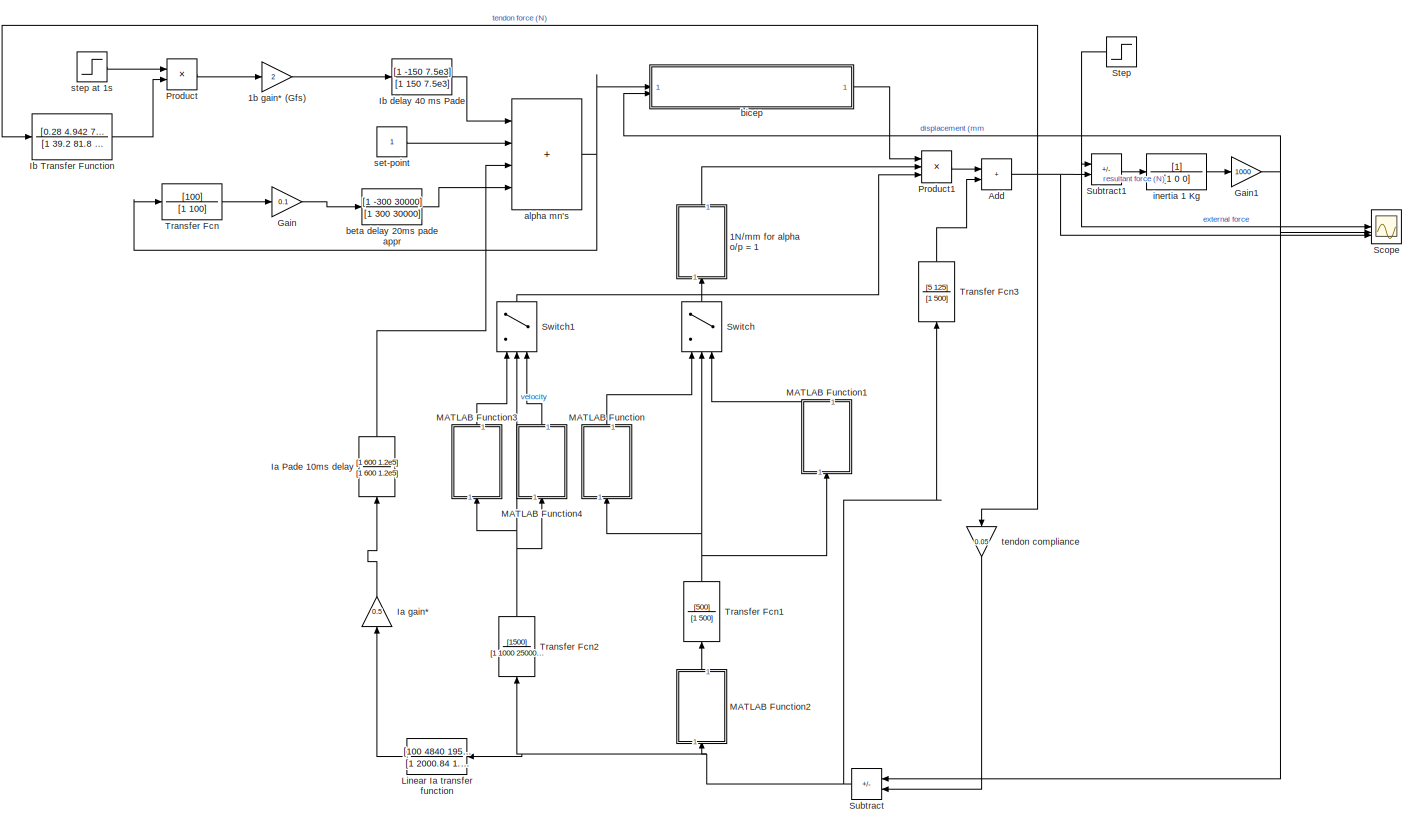
[diagram: root canvas - part 1/1, most of the canvas]
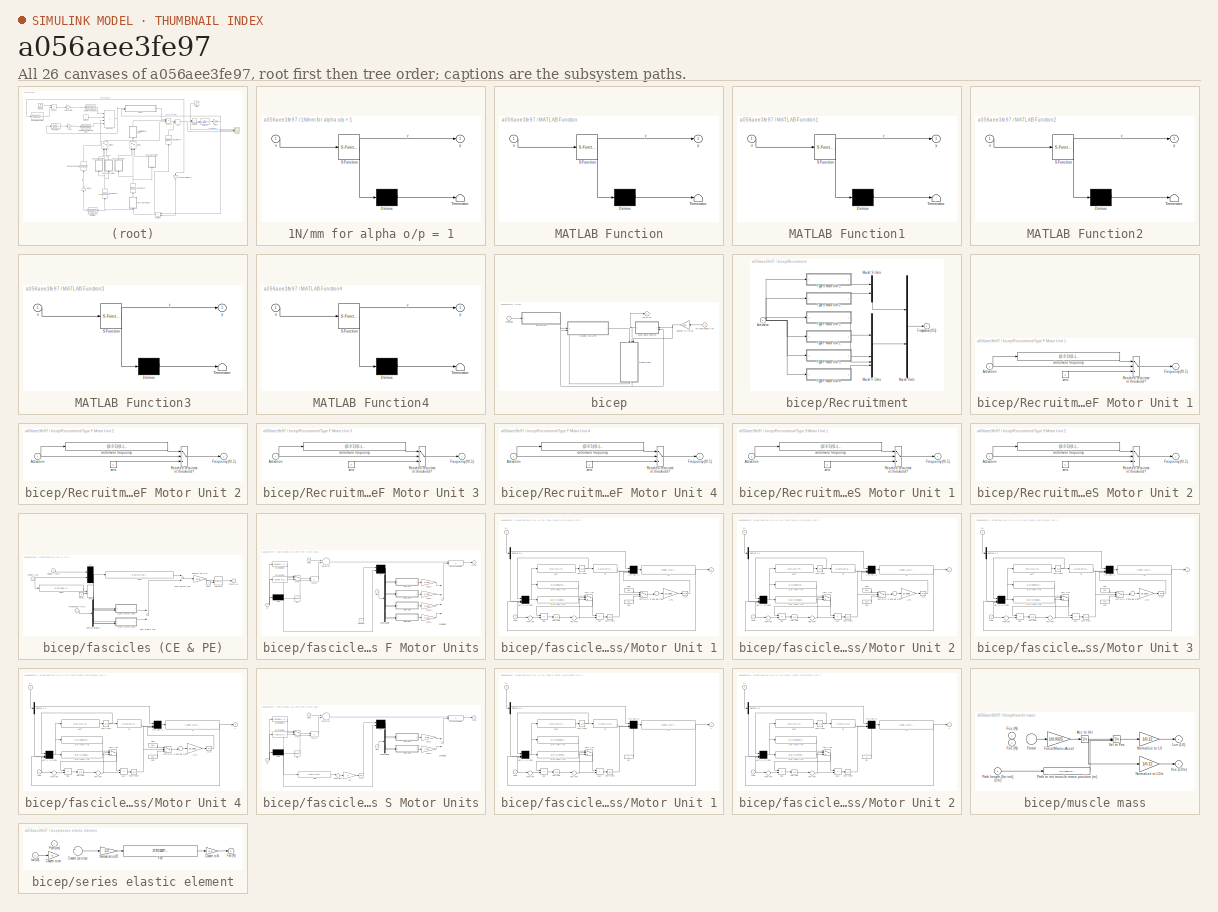
[diagram: thumbnail index - all 26 canvases of the model, root first then tree order]
MODEL slx_a056aee3fe97
KIND model
CONFIG AbsTol = auto
CONFIG EnableMultiTasking = off
CONFIG FixedStep = auto
CONFIG MaxStep = 0.2
CONFIG MinStep = auto
CONFIG RelTol = 1e-3
CONFIG SampleTimeConstraint = Unconstrained
CONFIG SolverName = VariableStepAuto
CONFIG StartTime = 0.0
CONFIG StopTime = 10.0
BLOCK [SubSystem] 1N//mm for alpha o//p = 1
  ErrorFcn = Stateflow.Translate.translate
  NameLocation = right
  PermitHierarchicalResolution = ExplicitOnly
  SFBlockType = MATLAB Function
  TreatAsAtomicUnit = on
BLOCK [Demux] 1N//mm for alpha o//p = 1/ Demux 
  Outputs = 1
BLOCK [S-Function] 1N//mm for alpha o//p = 1/ SFunction 
  EnableBusSupport = on
  FunctionName = sf_sfun
  PortCounts = [1 2]
  SFcnIsStateOwnerBlock = off
  SFunctionDeploymentMode = off
  Tag = Stateflow S-Function 4
BLOCK [Terminator] 1N//mm for alpha o//p = 1/ Terminator 
BLOCK [Inport] 1N//mm for alpha o//p = 1/u
BLOCK [Outport] 1N//mm for alpha o//p = 1/y
BLOCK [Gain] 1b gain* (Gfs)
  Gain = 2
BLOCK [Sum] Add
  IconShape = rectangular
BLOCK [Gain] Gain
  Gain = 0.1
BLOCK [Gain] Gain1
  Gain = 1000
BLOCK [TransferFcn] Ia Pade 10ms delay
  Denominator = [1 600 1.2e5]
  NameLocation = right
  Numerator = [1 600 1.2e5]
BLOCK [Gain] Ia gain*
  Gain = 0.5
  NameLocation = right
BLOCK [TransferFcn] Ib Transfer Function
  Denominator = [1 39.2 81.8 14.8]
  Numerator = [0.28 4.942 7.455 1.008]
BLOCK [TransferFcn] Ib delay 40 ms Pade
  Denominator = [1 150 7.5e3]
  Numerator = [1 -150 7.5e3]
BLOCK [TransferFcn] Linear Ia transfer function
  Denominator = [1 2000.84 1.00168e16 840064 32000]
  Numerator = [100 4840 19520 7040]
BLOCK [SubSystem] MATLAB Function
  ErrorFcn = Stateflow.Translate.translate
  NameLocation = right
  PermitHierarchicalResolution = ExplicitOnly
  SFBlockType = MATLAB Function
  TreatAsAtomicUnit = on
BLOCK [Demux] MATLAB Function/ Demux 
  Outputs = 1
BLOCK [S-Function] MATLAB Function/ SFunction 
  EnableBusSupport = on
  FunctionName = sf_sfun
  PortCounts = [1 2]
  SFcnIsStateOwnerBlock = off
  SFunctionDeploymentMode = off
  Tag = Stateflow S-Function 2
BLOCK [Terminator] MATLAB Function/ Terminator 
BLOCK [Inport] MATLAB Function/u
BLOCK [Outport] MATLAB Function/y
BLOCK [SubSystem] MATLAB Function1
  ErrorFcn = Stateflow.Translate.translate
  NameLocation = right
  PermitHierarchicalResolution = ExplicitOnly
  SFBlockType = MATLAB Function
  TreatAsAtomicUnit = on
BLOCK [Demux] MATLAB Function1/ Demux 
  Outputs = 1
BLOCK [S-Function] MATLAB Function1/ SFunction 
  EnableBusSupport = on
  FunctionName = sf_sfun
  PortCounts = [1 2]
  SFcnIsStateOwnerBlock = off
  SFunctionDeploymentMode = off
  Tag = Stateflow S-Function 1
BLOCK [Terminator] MATLAB Function1/ Terminator 
BLOCK [Inport] MATLAB Function1/u
BLOCK [Outport] MATLAB Function1/y
BLOCK [SubSystem] MATLAB Function2
  ErrorFcn = Stateflow.Translate.translate
  NameLocation = right
  PermitHierarchicalResolution = ExplicitOnly
  SFBlockType = MATLAB Function
  TreatAsAtomicUnit = on
BLOCK [Demux] MATLAB Function2/ Demux 
  Outputs = 1
BLOCK [S-Function] MATLAB Function2/ SFunction 
  EnableBusSupport = on
  FunctionName = sf_sfun
  PortCounts = [1 2]
  SFcnIsStateOwnerBlock = off
  SFunctionDeploymentMode = off
  Tag = Stateflow S-Function 3
BLOCK [Terminator] MATLAB Function2/ Terminator 
BLOCK [Inport] MATLAB Function2/u
BLOCK [Outport] MATLAB Function2/y
BLOCK [SubSystem] MATLAB Function3
  ErrorFcn = Stateflow.Translate.translate
  NameLocation = right
  PermitHierarchicalResolution = ExplicitOnly
  SFBlockType = MATLAB Function
  TreatAsAtomicUnit = on
BLOCK [Demux] MATLAB Function3/ Demux 
  Outputs = 1
BLOCK [S-Function] MATLAB Function3/ SFunction 
  EnableBusSupport = on
  FunctionName = sf_sfun
  PortCounts = [1 2]
  SFcnIsStateOwnerBlock = off
  SFunctionDeploymentMode = off
  Tag = Stateflow S-Function 5
BLOCK [Terminator] MATLAB Function3/ Terminator 
BLOCK [Inport] MATLAB Function3/u
BLOCK [Outport] MATLAB Function3/y
BLOCK [SubSystem] MATLAB Function4
  ErrorFcn = Stateflow.Translate.translate
  NameLocation = right
  PermitHierarchicalResolution = ExplicitOnly
  SFBlockType = MATLAB Function
  TreatAsAtomicUnit = on
BLOCK [Demux] MATLAB Function4/ Demux 
  Outputs = 1
BLOCK [S-Function] MATLAB Function4/ SFunction 
  EnableBusSupport = on
  FunctionName = sf_sfun
  PortCounts = [1 2]
  SFcnIsStateOwnerBlock = off
  SFunctionDeploymentMode = off
  Tag = Stateflow S-Function 6
BLOCK [Terminator] MATLAB Function4/ Terminator 
BLOCK [Inport] MATLAB Function4/u
BLOCK [Outport] MATLAB Function4/y
BLOCK [Product] Product
BLOCK [Product] Product1
  Inputs = 3
BLOCK [Scope] Scope
  Floating = off
  NumInputPorts = 3
  ScopeSpecificationString = Simulink.scopes.TimeScopeBlockCfg('CurrentConfiguration', extmgr.ConfigurationSet(extmgr.Configuration('Core','General UI',true),extmgr.Configuration('Core','Source UI',true),extmgr.Configuration('Sources','WiredSimulink',true),extmgr.Configuration('Visuals','Time Domain',true,'SerializedDisplays',{struct('MinYLimReal','-3.75','MaxYLimReal','33.75','YLabelReal','','MinYLimMag','0.00000','MaxYLimMa...<+2835ch>
BLOCK [Step] Step
  After = 0
  Before = 30
  SampleTime = 0
BLOCK [Sum] Subtract
  IconShape = rectangular
  Inputs = +-
BLOCK [Sum] Subtract1
  IconShape = rectangular
  Inputs = +-
BLOCK [Switch] Switch
  Criteria = u2 > Threshold
  InputSameDT = off
  NameLocation = left
  SaturateOnIntegerOverflow = off
BLOCK [Switch] Switch1
  Criteria = u2 > Threshold
  InputSameDT = off
  NameLocation = right
  SaturateOnIntegerOverflow = off
BLOCK [TransferFcn] Transfer Fcn
  Denominator = [1 100]
  Numerator = [100]
BLOCK [TransferFcn] Transfer Fcn1
  Denominator = [1 500]
  NameLocation = right
  Numerator = [500]
BLOCK [TransferFcn] Transfer Fcn2
  Denominator = [1 1000 250000]
  NameLocation = right
  Numerator = [1500]
BLOCK [TransferFcn] Transfer Fcn3
  Denominator = [1 500]
  NameLocation = right
  Numerator = [5 125]
BLOCK [Sum] alpha mn's
  IconShape = rectangular
  Inputs = ++++
BLOCK [TransferFcn] beta delay 20ms pade appr
  Denominator = [1 300 30000]
  Numerator = [1 -300 30000]
BLOCK [SubSystem] bicep
BLOCK [Inport] bicep/Activation
BLOCK [Gain] bicep/Convert m to cm
  Gain = 100
BLOCK [Outport] bicep/Force (N)
BLOCK [Inport] bicep/MT path length (m)
  NameLocation = top
  Port = 2
BLOCK [SubSystem] bicep/Recruitment
BLOCK [Inport] bicep/Recruitment/Activation
BLOCK [Outport] bicep/Recruitment/Frequencies (f0.5)
BLOCK [Mux] bicep/Recruitment/Mux all F Units
BLOCK [Mux] bicep/Recruitment/Mux all S Units
  Inputs = 2
BLOCK [Mux] bicep/Recruitment/Mux all Units
  Inputs = 2
BLOCK [SubSystem] bicep/Recruitment/Type F Motor Unit 1
BLOCK [Inport] bicep/Recruitment/Type F Motor Unit 1/Activation
BLOCK [Outport] bicep/Recruitment/Type F Motor Unit 1/Frequency (f0.5)
BLOCK [Switch] bicep/Recruitment/Type F Motor Unit 1/Reached recruitment threshold?
  Threshold = 0.5
BLOCK [Fcn] bicep/Recruitment/Type F Motor Unit 1/determine frequency
  Expr = ((2-0.5)/(1-(0.5)))*(u(1)-(0.5))+0.5
BLOCK [Constant] bicep/Recruitment/Type F Motor Unit 1/zero
  Value = 0
BLOCK [SubSystem] bicep/Recruitment/Type F Motor Unit 2
BLOCK [Inport] bicep/Recruitment/Type F Motor Unit 2/Activation
BLOCK [Outport] bicep/Recruitment/Type F Motor Unit 2/Frequency (f0.5)
BLOCK [Switch] bicep/Recruitment/Type F Motor Unit 2/Reached recruitment threshold?
  Threshold = 0.6
BLOCK [Fcn] bicep/Recruitment/Type F Motor Unit 2/determine frequency
  Expr = ((2-0.5)/(1-(0.6)))*(u(1)-(0.6))+0.5
BLOCK [Constant] bicep/Recruitment/Type F Motor Unit 2/zero
  Value = 0
BLOCK [SubSystem] bicep/Recruitment/Type F Motor Unit 3
BLOCK [Inport] bicep/Recruitment/Type F Motor Unit 3/Activation
BLOCK [Outport] bicep/Recruitment/Type F Motor Unit 3/Frequency (f0.5)
BLOCK [Switch] bicep/Recruitment/Type F Motor Unit 3/Reached recruitment threshold?
  Threshold = 0.7
BLOCK [Fcn] bicep/Recruitment/Type F Motor Unit 3/determine frequency
  Expr = ((2-0.5)/(1-(0.7)))*(u(1)-(0.7))+0.5
BLOCK [Constant] bicep/Recruitment/Type F Motor Unit 3/zero
  Value = 0
BLOCK [SubSystem] bicep/Recruitment/Type F Motor Unit 4
BLOCK [Inport] bicep/Recruitment/Type F Motor Unit 4/Activation
BLOCK [Outport] bicep/Recruitment/Type F Motor Unit 4/Frequency (f0.5)
BLOCK [Switch] bicep/Recruitment/Type F Motor Unit 4/Reached recruitment threshold?
  Threshold = 0.8
BLOCK [Fcn] bicep/Recruitment/Type F Motor Unit 4/determine frequency
  Expr = ((2-0.5)/(1-(0.8)))*(u(1)-(0.8))+0.5
BLOCK [Constant] bicep/Recruitment/Type F Motor Unit 4/zero
  Value = 0
BLOCK [SubSystem] bicep/Recruitment/Type S Motor Unit 1
BLOCK [Inport] bicep/Recruitment/Type S Motor Unit 1/Activation
BLOCK [Outport] bicep/Recruitment/Type S Motor Unit 1/Frequency (f0.5)
BLOCK [Switch] bicep/Recruitment/Type S Motor Unit 1/Reached recruitment threshold?
  Threshold = 0.2
BLOCK [Fcn] bicep/Recruitment/Type S Motor Unit 1/determine frequency
  Expr = ((2-0.5)/(1-(0.2)))*(u(1)-(0.2))+0.5
BLOCK [Constant] bicep/Recruitment/Type S Motor Unit 1/zero
  Value = 0
BLOCK [SubSystem] bicep/Recruitment/Type S Motor Unit 2
BLOCK [Inport] bicep/Recruitment/Type S Motor Unit 2/Activation
BLOCK [Outport] bicep/Recruitment/Type S Motor Unit 2/Frequency (f0.5)
BLOCK [Switch] bicep/Recruitment/Type S Motor Unit 2/Reached recruitment threshold?
  Threshold = 0.4
BLOCK [Fcn] bicep/Recruitment/Type S Motor Unit 2/determine frequency
  Expr = ((2-0.5)/(1-(0.4)))*(u(1)-(0.4))+0.5
BLOCK [Constant] bicep/Recruitment/Type S Motor Unit 2/zero
  Value = 0
BLOCK [SubSystem] bicep/fascicles (CE & PE)
BLOCK [Gain] bicep/fascicles (CE & PE)/Convert F0 to N
  Gain = 12.5
  NameLocation = top
BLOCK [Demux] bicep/fascicles (CE & PE)/Demux all Units
  Outputs = [2  4]
BLOCK [Outport] bicep/fascicles (CE & PE)/Force (N)
BLOCK [MinMax] bicep/fascicles (CE & PE)/Force>0
  Function = max
  Inputs = 2
BLOCK [Fcn] bicep/fascicles (CE & PE)/Fpe1
  Expr = 0.01*u(1)+23*0.046*log(exp((u(2)/1.1739-1.17)/0.046)+1)
BLOCK [Fcn] bicep/fascicles (CE & PE)/Fpe2
  Expr = -0.02*(exp(-21.0375*(u-0.70222))-1)
BLOCK [Inport] bicep/fascicles (CE & PE)/Frequencies (f0.5)
  NameLocation = top
BLOCK [Inport] bicep/fascicles (CE & PE)/Length (L0)
  Port = 2
BLOCK [MinMax] bicep/fascicles (CE & PE)/Min
  Inputs = 2
BLOCK [Sum] bicep/fascicles (CE & PE)/Sum Forces (F0)
  Inputs = 2
  NameLocation = top
BLOCK [Sum] bicep/fascicles (CE & PE)/Sum all Units (F0)
BLOCK [SubSystem] bicep/fascicles (CE & PE)/Type F Motor Units
BLOCK [Product] bicep/fascicles (CE & PE)/Type F Motor Units/Af*(FL*FV+PE2)
BLOCK [Constant] bicep/fascicles (CE & PE)/Type F Motor Units/Constant
BLOCK [Demux] bicep/fascicles (CE & PE)/Type F Motor Units/Demux all Units
BLOCK [Outport] bicep/fascicles (CE & PE)/Type F Motor Units/F (Fo)
BLOCK [Fcn] bicep/fascicles (CE & PE)/Type F Motor Units/FL
  Expr = exp(-abs((u^1.55-1)/0.74633)^2.12)
BLOCK [Product] bicep/fascicles (CE & PE)/Type F Motor Units/FL*FV
BLOCK [Fcn] bicep/fascicles (CE & PE)/Type F Motor Units/FV (lengthen)
  Expr = (0.68637-(-1.53+0*u(2)+0*u(2)^2)*u(1))/(0.68637+u(1))
BLOCK [Fcn] bicep/fascicles (CE & PE)/Type F Motor Units/FV (shorten)
  Expr = (-9.1516-u(1))/(-9.1516+(-5.7+9.18*u(2))*u(1))
BLOCK [Inport] bicep/fascicles (CE & PE)/Type F Motor Units/Fpe2
  Port = 3
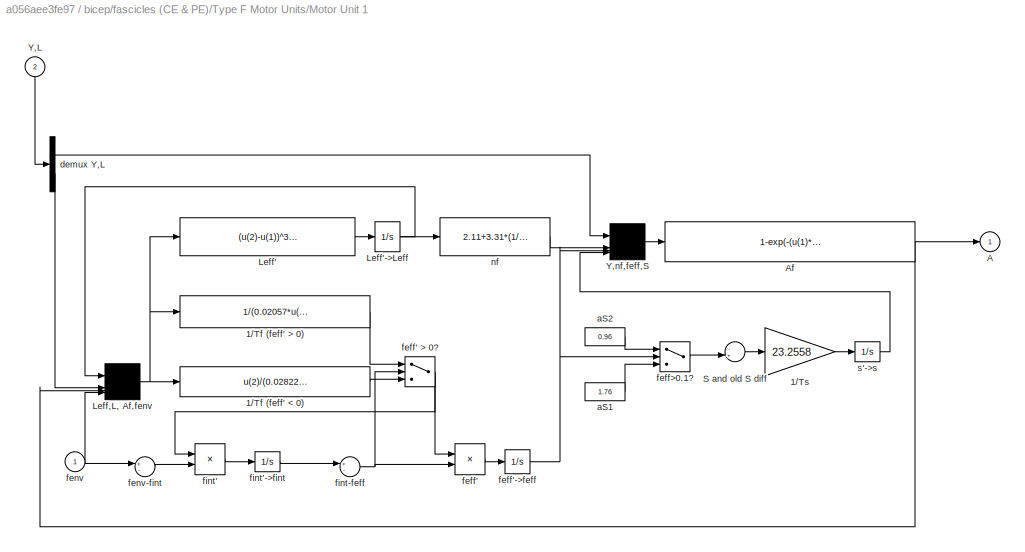
BLOCK [SubSystem] bicep/fascicles (CE & PE)/Type F Motor Units/Motor Unit 1
BLOCK [Fcn] bicep/fascicles (CE & PE)/Type F Motor Units/Motor Unit 1/1//Tf (feff' < 0)
  Expr = u(2)/(0.02822+0.01513*u(3))
BLOCK [Fcn] bicep/fascicles (CE & PE)/Type F Motor Units/Motor Unit 1/1//Tf (feff' > 0)
  Expr = 1/(0.02057*u(2)^2+0.0136*u(4))
BLOCK [Gain] bicep/fascicles (CE & PE)/Type F Motor Units/Motor Unit 1/1//Ts
  Gain = 23.2558
BLOCK [Outport] bicep/fascicles (CE & PE)/Type F Motor Units/Motor Unit 1/A
BLOCK [Fcn] bicep/fascicles (CE & PE)/Type F Motor Units/Motor Unit 1/Af
  Expr = 1-exp(-(u(1)*u(4)*u(3)/(0.56*u(2)))^u(2))
BLOCK [Fcn] bicep/fascicles (CE & PE)/Type F Motor Units/Motor Unit 1/Leff'
  Expr = (u(2)-u(1))^3/((1-u(3))*8.8e-05)
BLOCK [Integrator] bicep/fascicles (CE & PE)/Type F Motor Units/Motor Unit 1/Leff'->Leff
  InitialCondition = 1
BLOCK [Mux] bicep/fascicles (CE & PE)/Type F Motor Units/Motor Unit 1/Leff,L, Af,fenv
BLOCK [Sum] bicep/fascicles (CE & PE)/Type F Motor Units/Motor Unit 1/S and old S diff
  Inputs = -+
BLOCK [Inport] bicep/fascicles (CE & PE)/Type F Motor Units/Motor Unit 1/Y,L
  NameLocation = right
  Port = 2
BLOCK [Mux] bicep/fascicles (CE & PE)/Type F Motor Units/Motor Unit 1/Y,nf,feff,S
BLOCK [Constant] bicep/fascicles (CE & PE)/Type F Motor Units/Motor Unit 1/aS1
  Value = 1.76
BLOCK [Constant] bicep/fascicles (CE & PE)/Type F Motor Units/Motor Unit 1/aS2
  Value = 0.96
BLOCK [Demux] bicep/fascicles (CE & PE)/Type F Motor Units/Motor Unit 1/demux Y,L
  Outputs = 2
BLOCK [Product] bicep/fascicles (CE & PE)/Type F Motor Units/Motor Unit 1/feff'
BLOCK [Switch] bicep/fascicles (CE & PE)/Type F Motor Units/Motor Unit 1/feff' > 0?
BLOCK [Integrator] bicep/fascicles (CE & PE)/Type F Motor Units/Motor Unit 1/feff'->feff
BLOCK [Switch] bicep/fascicles (CE & PE)/Type F Motor Units/Motor Unit 1/feff>0.1?
  Threshold = 0.1
BLOCK [Inport] bicep/fascicles (CE & PE)/Type F Motor Units/Motor Unit 1/fenv
BLOCK [Sum] bicep/fascicles (CE & PE)/Type F Motor Units/Motor Unit 1/fenv-fint
  Inputs = +-
BLOCK [Product] bicep/fascicles (CE & PE)/Type F Motor Units/Motor Unit 1/fint'
BLOCK [Integrator] bicep/fascicles (CE & PE)/Type F Motor Units/Motor Unit 1/fint'->fint
BLOCK [Sum] bicep/fascicles (CE & PE)/Type F Motor Units/Motor Unit 1/fint-feff
  Inputs = +-
BLOCK [Fcn] bicep/fascicles (CE & PE)/Type F Motor Units/Motor Unit 1/nf
  Expr = 2.11+3.31*(1/u-1)
BLOCK [Integrator] bicep/fascicles (CE & PE)/Type F Motor Units/Motor Unit 1/s'->s
  InitialCondition = 1.76
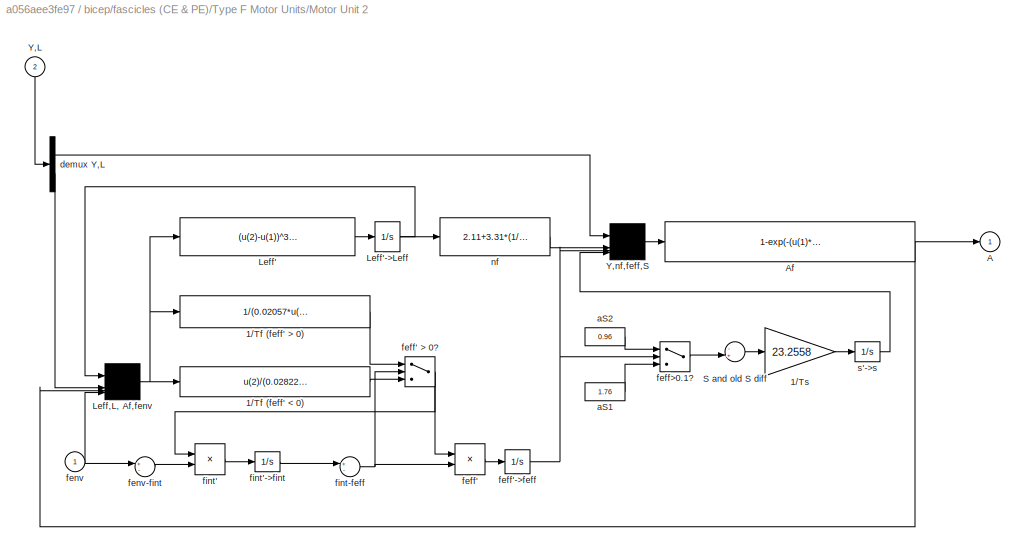
BLOCK [SubSystem] bicep/fascicles (CE & PE)/Type F Motor Units/Motor Unit 2
BLOCK [Fcn] bicep/fascicles (CE & PE)/Type F Motor Units/Motor Unit 2/1//Tf (feff' < 0)
  Expr = u(2)/(0.02822+0.01513*u(3))
BLOCK [Fcn] bicep/fascicles (CE & PE)/Type F Motor Units/Motor Unit 2/1//Tf (feff' > 0)
  Expr = 1/(0.02057*u(2)^2+0.0136*u(4))
BLOCK [Gain] bicep/fascicles (CE & PE)/Type F Motor Units/Motor Unit 2/1//Ts
  Gain = 23.2558
BLOCK [Outport] bicep/fascicles (CE & PE)/Type F Motor Units/Motor Unit 2/A
BLOCK [Fcn] bicep/fascicles (CE & PE)/Type F Motor Units/Motor Unit 2/Af
  Expr = 1-exp(-(u(1)*u(4)*u(3)/(0.56*u(2)))^u(2))
BLOCK [Fcn] bicep/fascicles (CE & PE)/Type F Motor Units/Motor Unit 2/Leff'
  Expr = (u(2)-u(1))^3/((1-u(3))*8.8e-05)
BLOCK [Integrator] bicep/fascicles (CE & PE)/Type F Motor Units/Motor Unit 2/Leff'->Leff
  InitialCondition = 1
BLOCK [Mux] bicep/fascicles (CE & PE)/Type F Motor Units/Motor Unit 2/Leff,L, Af,fenv
BLOCK [Sum] bicep/fascicles (CE & PE)/Type F Motor Units/Motor Unit 2/S and old S diff
  Inputs = -+
BLOCK [Inport] bicep/fascicles (CE & PE)/Type F Motor Units/Motor Unit 2/Y,L
  NameLocation = right
  Port = 2
BLOCK [Mux] bicep/fascicles (CE & PE)/Type F Motor Units/Motor Unit 2/Y,nf,feff,S
BLOCK [Constant] bicep/fascicles (CE & PE)/Type F Motor Units/Motor Unit 2/aS1
  Value = 1.76
BLOCK [Constant] bicep/fascicles (CE & PE)/Type F Motor Units/Motor Unit 2/aS2
  Value = 0.96
BLOCK [Demux] bicep/fascicles (CE & PE)/Type F Motor Units/Motor Unit 2/demux Y,L
  Outputs = 2
BLOCK [Product] bicep/fascicles (CE & PE)/Type F Motor Units/Motor Unit 2/feff'
BLOCK [Switch] bicep/fascicles (CE & PE)/Type F Motor Units/Motor Unit 2/feff' > 0?
BLOCK [Integrator] bicep/fascicles (CE & PE)/Type F Motor Units/Motor Unit 2/feff'->feff
BLOCK [Switch] bicep/fascicles (CE & PE)/Type F Motor Units/Motor Unit 2/feff>0.1?
  Threshold = 0.1
BLOCK [Inport] bicep/fascicles (CE & PE)/Type F Motor Units/Motor Unit 2/fenv
BLOCK [Sum] bicep/fascicles (CE & PE)/Type F Motor Units/Motor Unit 2/fenv-fint
  Inputs = +-
BLOCK [Product] bicep/fascicles (CE & PE)/Type F Motor Units/Motor Unit 2/fint'
BLOCK [Integrator] bicep/fascicles (CE & PE)/Type F Motor Units/Motor Unit 2/fint'->fint
BLOCK [Sum] bicep/fascicles (CE & PE)/Type F Motor Units/Motor Unit 2/fint-feff
  Inputs = +-
BLOCK [Fcn] bicep/fascicles (CE & PE)/Type F Motor Units/Motor Unit 2/nf
  Expr = 2.11+3.31*(1/u-1)
BLOCK [Integrator] bicep/fascicles (CE & PE)/Type F Motor Units/Motor Unit 2/s'->s
  InitialCondition = 1.76
BLOCK [SubSystem] bicep/fascicles (CE & PE)/Type F Motor Units/Motor Unit 3
BLOCK [Fcn] bicep/fascicles (CE & PE)/Type F Motor Units/Motor Unit 3/1//Tf (feff' < 0)
  Expr = u(2)/(0.02822+0.01513*u(3))
BLOCK [Fcn] bicep/fascicles (CE & PE)/Type F Motor Units/Motor Unit 3/1//Tf (feff' > 0)
  Expr = 1/(0.02057*u(2)^2+0.0136*u(4))
BLOCK [Gain] bicep/fascicles (CE & PE)/Type F Motor Units/Motor Unit 3/1//Ts
  Gain = 23.2558
BLOCK [Outport] bicep/fascicles (CE & PE)/Type F Motor Units/Motor Unit 3/A
BLOCK [Fcn] bicep/fascicles (CE & PE)/Type F Motor Units/Motor Unit 3/Af
  Expr = 1-exp(-(u(1)*u(4)*u(3)/(0.56*u(2)))^u(2))
BLOCK [Fcn] bicep/fascicles (CE & PE)/Type F Motor Units/Motor Unit 3/Leff'
  Expr = (u(2)-u(1))^3/((1-u(3))*8.8e-05)
BLOCK [Integrator] bicep/fascicles (CE & PE)/Type F Motor Units/Motor Unit 3/Leff'->Leff
  InitialCondition = 1
BLOCK [Mux] bicep/fascicles (CE & PE)/Type F Motor Units/Motor Unit 3/Leff,L, Af,fenv
BLOCK [Sum] bicep/fascicles (CE & PE)/Type F Motor Units/Motor Unit 3/S and old S diff
  Inputs = -+
BLOCK [Inport] bicep/fascicles (CE & PE)/Type F Motor Units/Motor Unit 3/Y,L
  NameLocation = right
  Port = 2
BLOCK [Mux] bicep/fascicles (CE & PE)/Type F Motor Units/Motor Unit 3/Y,nf,feff,S
BLOCK [Constant] bicep/fascicles (CE & PE)/Type F Motor Units/Motor Unit 3/aS1
  Value = 1.76
BLOCK [Constant] bicep/fascicles (CE & PE)/Type F Motor Units/Motor Unit 3/aS2
  Value = 0.96
BLOCK [Demux] bicep/fascicles (CE & PE)/Type F Motor Units/Motor Unit 3/demux Y,L
  Outputs = 2
BLOCK [Product] bicep/fascicles (CE & PE)/Type F Motor Units/Motor Unit 3/feff'
BLOCK [Switch] bicep/fascicles (CE & PE)/Type F Motor Units/Motor Unit 3/feff' > 0?
BLOCK [Integrator] bicep/fascicles (CE & PE)/Type F Motor Units/Motor Unit 3/feff'->feff
BLOCK [Switch] bicep/fascicles (CE & PE)/Type F Motor Units/Motor Unit 3/feff>0.1?
  Threshold = 0.1
BLOCK [Inport] bicep/fascicles (CE & PE)/Type F Motor Units/Motor Unit 3/fenv
BLOCK [Sum] bicep/fascicles (CE & PE)/Type F Motor Units/Motor Unit 3/fenv-fint
  Inputs = +-
BLOCK [Product] bicep/fascicles (CE & PE)/Type F Motor Units/Motor Unit 3/fint'
BLOCK [Integrator] bicep/fascicles (CE & PE)/Type F Motor Units/Motor Unit 3/fint'->fint
BLOCK [Sum] bicep/fascicles (CE & PE)/Type F Motor Units/Motor Unit 3/fint-feff
  Inputs = +-
BLOCK [Fcn] bicep/fascicles (CE & PE)/Type F Motor Units/Motor Unit 3/nf
  Expr = 2.11+3.31*(1/u-1)
BLOCK [Integrator] bicep/fascicles (CE & PE)/Type F Motor Units/Motor Unit 3/s'->s
  InitialCondition = 1.76
BLOCK [SubSystem] bicep/fascicles (CE & PE)/Type F Motor Units/Motor Unit 4
BLOCK [Fcn] bicep/fascicles (CE & PE)/Type F Motor Units/Motor Unit 4/1//Tf (feff' < 0)
  Expr = u(2)/(0.02822+0.01513*u(3))
BLOCK [Fcn] bicep/fascicles (CE & PE)/Type F Motor Units/Motor Unit 4/1//Tf (feff' > 0)
  Expr = 1/(0.02057*u(2)^2+0.0136*u(4))
BLOCK [Gain] bicep/fascicles (CE & PE)/Type F Motor Units/Motor Unit 4/1//Ts
  Gain = 23.2558
BLOCK [Outport] bicep/fascicles (CE & PE)/Type F Motor Units/Motor Unit 4/A
BLOCK [Fcn] bicep/fascicles (CE & PE)/Type F Motor Units/Motor Unit 4/Af
  Expr = 1-exp(-(u(1)*u(4)*u(3)/(0.56*u(2)))^u(2))
BLOCK [Fcn] bicep/fascicles (CE & PE)/Type F Motor Units/Motor Unit 4/Leff'
  Expr = (u(2)-u(1))^3/((1-u(3))*8.8e-05)
BLOCK [Integrator] bicep/fascicles (CE & PE)/Type F Motor Units/Motor Unit 4/Leff'->Leff
  InitialCondition = 1
BLOCK [Mux] bicep/fascicles (CE & PE)/Type F Motor Units/Motor Unit 4/Leff,L, Af,fenv
BLOCK [Sum] bicep/fascicles (CE & PE)/Type F Motor Units/Motor Unit 4/S and old S diff
  Inputs = -+
BLOCK [Inport] bicep/fascicles (CE & PE)/Type F Motor Units/Motor Unit 4/Y,L
  NameLocation = right
  Port = 2
BLOCK [Mux] bicep/fascicles (CE & PE)/Type F Motor Units/Motor Unit 4/Y,nf,feff,S
BLOCK [Constant] bicep/fascicles (CE & PE)/Type F Motor Units/Motor Unit 4/aS1
  Value = 1.76
BLOCK [Constant] bicep/fascicles (CE & PE)/Type F Motor Units/Motor Unit 4/aS2
  Value = 0.96
BLOCK [Demux] bicep/fascicles (CE & PE)/Type F Motor Units/Motor Unit 4/demux Y,L
  Outputs = 2
BLOCK [Product] bicep/fascicles (CE & PE)/Type F Motor Units/Motor Unit 4/feff'
BLOCK [Switch] bicep/fascicles (CE & PE)/Type F Motor Units/Motor Unit 4/feff' > 0?
BLOCK [Integrator] bicep/fascicles (CE & PE)/Type F Motor Units/Motor Unit 4/feff'->feff
BLOCK [Switch] bicep/fascicles (CE & PE)/Type F Motor Units/Motor Unit 4/feff>0.1?
  Threshold = 0.1
BLOCK [Inport] bicep/fascicles (CE & PE)/Type F Motor Units/Motor Unit 4/fenv
BLOCK [Sum] bicep/fascicles (CE & PE)/Type F Motor Units/Motor Unit 4/fenv-fint
  Inputs = +-
BLOCK [Product] bicep/fascicles (CE & PE)/Type F Motor Units/Motor Unit 4/fint'
BLOCK [Integrator] bicep/fascicles (CE & PE)/Type F Motor Units/Motor Unit 4/fint'->fint
BLOCK [Sum] bicep/fascicles (CE & PE)/Type F Motor Units/Motor Unit 4/fint-feff
  Inputs = +-
BLOCK [Fcn] bicep/fascicles (CE & PE)/Type F Motor Units/Motor Unit 4/nf
  Expr = 2.11+3.31*(1/u-1)
BLOCK [Integrator] bicep/fascicles (CE & PE)/Type F Motor Units/Motor Unit 4/s'->s
  InitialCondition = 1.76
BLOCK [Gain] bicep/fascicles (CE & PE)/Type F Motor Units/PCSA 1
  Gain = 0.125
BLOCK [Gain] bicep/fascicles (CE & PE)/Type F Motor Units/PCSA 2
  Gain = 0.125
BLOCK [Gain] bicep/fascicles (CE & PE)/Type F Motor Units/PCSA 3
  Gain = 0.125
BLOCK [Gain] bicep/fascicles (CE & PE)/Type F Motor Units/PCSA 4
  Gain = 0.125
BLOCK [Sum] bicep/fascicles (CE & PE)/Type F Motor Units/PE+FL*FV
BLOCK [Sum] bicep/fascicles (CE & PE)/Type F Motor Units/Sum all Units
  Inputs = ++++
BLOCK [Inport] bicep/fascicles (CE & PE)/Type F Motor Units/V,L
  Port = 2
BLOCK [Mux] bicep/fascicles (CE & PE)/Type F Motor Units/Y,L
  Inputs = 2
BLOCK [Inport] bicep/fascicles (CE & PE)/Type F Motor Units/fenv
BLOCK [Demux] bicep/fascicles (CE & PE)/Type F Motor Units/split V,L
  Outputs = 2
BLOCK [Switch] bicep/fascicles (CE & PE)/Type F Motor Units/v > 0?
BLOCK [SubSystem] bicep/fascicles (CE & PE)/Type S Motor Units
BLOCK [Gain] bicep/fascicles (CE & PE)/Type S Motor Units/1//Ty
  Gain = 5
BLOCK [Product] bicep/fascicles (CE & PE)/Type S Motor Units/Af*(FL*FV+PE2)
BLOCK [Demux] bicep/fascicles (CE & PE)/Type S Motor Units/Demux all Units
  Outputs = 2
BLOCK [Outport] bicep/fascicles (CE & PE)/Type S Motor Units/F (Fo)
BLOCK [Fcn] bicep/fascicles (CE & PE)/Type S Motor Units/FL
  Expr = exp(-abs((u^2.3-1)/1.1244)^1.62)
BLOCK [Product] bicep/fascicles (CE & PE)/Type S Motor Units/FL*FV
BLOCK [Fcn] bicep/fascicles (CE & PE)/Type S Motor Units/FV (lengthen)
  Expr = (0.34936-(-4.7+8.41*u(2)+-5.31*u(2)^2)*u(1))/(0.34936+u(1))
BLOCK [Fcn] bicep/fascicles (CE & PE)/Type S Motor Units/FV (shorten)
  Expr = (-7.88-u(1))/(-7.88+(5.88+0*u(2))*u(1))
BLOCK [Inport] bicep/fascicles (CE & PE)/Type S Motor Units/Fpe2
  Port = 3
BLOCK [SubSystem] bicep/fascicles (CE & PE)/Type S Motor Units/Motor Unit 1
BLOCK [Fcn] bicep/fascicles (CE & PE)/Type S Motor Units/Motor Unit 1/1//Tf (feff' < 0)
  Expr = u(2)/(0.047033+0.025217*u(3))
BLOCK [Fcn] bicep/fascicles (CE & PE)/Type S Motor Units/Motor Unit 1/1//Tf (feff' > 0)
  Expr = 1/(0.034283*u(2)^2+0.022667*u(4))
BLOCK [Outport] bicep/fascicles (CE & PE)/Type S Motor Units/Motor Unit 1/A
BLOCK [Fcn] bicep/fascicles (CE & PE)/Type S Motor Units/Motor Unit 1/Af
  Expr = 1-exp(-(u(1)*u(4)*u(3)/(0.56*u(2)))^u(2))
BLOCK [Fcn] bicep/fascicles (CE & PE)/Type S Motor Units/Motor Unit 1/Leff'
  Expr = (u(2)-u(1))^3/((1-u(3))*8.8e-05)
BLOCK [Integrator] bicep/fascicles (CE & PE)/Type S Motor Units/Motor Unit 1/Leff'->Leff
  InitialCondition = 1
BLOCK [Mux] bicep/fascicles (CE & PE)/Type S Motor Units/Motor Unit 1/Leff,L, Af,fenv
BLOCK [Inport] bicep/fascicles (CE & PE)/Type S Motor Units/Motor Unit 1/Y,L
  NameLocation = right
  Port = 2
BLOCK [Mux] bicep/fascicles (CE & PE)/Type S Motor Units/Motor Unit 1/Y,nf,feff,S
BLOCK [Constant] bicep/fascicles (CE & PE)/Type S Motor Units/Motor Unit 1/aS
BLOCK [Demux] bicep/fascicles (CE & PE)/Type S Motor Units/Motor Unit 1/demux Y,L
  Outputs = 2
BLOCK [Product] bicep/fascicles (CE & PE)/Type S Motor Units/Motor Unit 1/feff'
BLOCK [Switch] bicep/fascicles (CE & PE)/Type S Motor Units/Motor Unit 1/feff' > 0?
BLOCK [Integrator] bicep/fascicles (CE & PE)/Type S Motor Units/Motor Unit 1/feff'->feff
BLOCK [Inport] bicep/fascicles (CE & PE)/Type S Motor Units/Motor Unit 1/fenv
BLOCK [Sum] bicep/fascicles (CE & PE)/Type S Motor Units/Motor Unit 1/fenv-fint
  Inputs = +-
BLOCK [Product] bicep/fascicles (CE & PE)/Type S Motor Units/Motor Unit 1/fint'
BLOCK [Integrator] bicep/fascicles (CE & PE)/Type S Motor Units/Motor Unit 1/fint'->fint
BLOCK [Sum] bicep/fascicles (CE & PE)/Type S Motor Units/Motor Unit 1/fint-feff
  Inputs = +-
BLOCK [Fcn] bicep/fascicles (CE & PE)/Type S Motor Units/Motor Unit 1/nf
  Expr = 2.11+5*(1/u-1)
BLOCK [SubSystem] bicep/fascicles (CE & PE)/Type S Motor Units/Motor Unit 2
BLOCK [Fcn] bicep/fascicles (CE & PE)/Type S Motor Units/Motor Unit 2/1//Tf (feff' < 0)
  Expr = u(2)/(0.047033+0.025217*u(3))
BLOCK [Fcn] bicep/fascicles (CE & PE)/Type S Motor Units/Motor Unit 2/1//Tf (feff' > 0)
  Expr = 1/(0.034283*u(2)^2+0.022667*u(4))
BLOCK [Outport] bicep/fascicles (CE & PE)/Type S Motor Units/Motor Unit 2/A
BLOCK [Fcn] bicep/fascicles (CE & PE)/Type S Motor Units/Motor Unit 2/Af
  Expr = 1-exp(-(u(1)*u(4)*u(3)/(0.56*u(2)))^u(2))
BLOCK [Fcn] bicep/fascicles (CE & PE)/Type S Motor Units/Motor Unit 2/Leff'
  Expr = (u(2)-u(1))^3/((1-u(3))*8.8e-05)
BLOCK [Integrator] bicep/fascicles (CE & PE)/Type S Motor Units/Motor Unit 2/Leff'->Leff
  InitialCondition = 1
BLOCK [Mux] bicep/fascicles (CE & PE)/Type S Motor Units/Motor Unit 2/Leff,L, Af,fenv
BLOCK [Inport] bicep/fascicles (CE & PE)/Type S Motor Units/Motor Unit 2/Y,L
  NameLocation = right
  Port = 2
BLOCK [Mux] bicep/fascicles (CE & PE)/Type S Motor Units/Motor Unit 2/Y,nf,feff,S
BLOCK [Constant] bicep/fascicles (CE & PE)/Type S Motor Units/Motor Unit 2/aS
BLOCK [Demux] bicep/fascicles (CE & PE)/Type S Motor Units/Motor Unit 2/demux Y,L
  Outputs = 2
BLOCK [Product] bicep/fascicles (CE & PE)/Type S Motor Units/Motor Unit 2/feff'
BLOCK [Switch] bicep/fascicles (CE & PE)/Type S Motor Units/Motor Unit 2/feff' > 0?
BLOCK [Integrator] bicep/fascicles (CE & PE)/Type S Motor Units/Motor Unit 2/feff'->feff
BLOCK [Inport] bicep/fascicles (CE & PE)/Type S Motor Units/Motor Unit 2/fenv
BLOCK [Sum] bicep/fascicles (CE & PE)/Type S Motor Units/Motor Unit 2/fenv-fint
  Inputs = +-
BLOCK [Product] bicep/fascicles (CE & PE)/Type S Motor Units/Motor Unit 2/fint'
BLOCK [Integrator] bicep/fascicles (CE & PE)/Type S Motor Units/Motor Unit 2/fint'->fint
BLOCK [Sum] bicep/fascicles (CE & PE)/Type S Motor Units/Motor Unit 2/fint-feff
  Inputs = +-
BLOCK [Fcn] bicep/fascicles (CE & PE)/Type S Motor Units/Motor Unit 2/nf
  Expr = 2.11+5*(1/u-1)
BLOCK [Gain] bicep/fascicles (CE & PE)/Type S Motor Units/PCSA 1
  Gain = 0.25
BLOCK [Gain] bicep/fascicles (CE & PE)/Type S Motor Units/PCSA 2
  Gain = 0.25
BLOCK [Sum] bicep/fascicles (CE & PE)/Type S Motor Units/PE+FL*FV
BLOCK [Sum] bicep/fascicles (CE & PE)/Type S Motor Units/Sum all Units
BLOCK [Inport] bicep/fascicles (CE & PE)/Type S Motor Units/V,L
  Port = 2
BLOCK [Mux] bicep/fascicles (CE & PE)/Type S Motor Units/Y,L
  Inputs = 2
BLOCK [Inport] bicep/fascicles (CE & PE)/Type S Motor Units/fenv
BLOCK [Sum] bicep/fascicles (CE & PE)/Type S Motor Units/newY-oldY
  Inputs = +-
BLOCK [Demux] bicep/fascicles (CE & PE)/Type S Motor Units/split V,L
  Outputs = 2
BLOCK [Switch] bicep/fascicles (CE & PE)/Type S Motor Units/v > 0?
BLOCK [Integrator] bicep/fascicles (CE & PE)/Type S Motor Units/y'->y
  InitialCondition = 1
BLOCK [Fcn] bicep/fascicles (CE & PE)/Type S Motor Units/yield
  Expr = 1-0.35*(1-exp(-abs(u)/0.1))
BLOCK [Mux] bicep/fascicles (CE & PE)/V,L
  Inputs = 2
BLOCK [Inport] bicep/fascicles (CE & PE)/Velocity (L0//s)
  Port = 3
BLOCK [Constant] bicep/fascicles (CE & PE)/zero
  Value = 0
BLOCK [Constant] bicep/fascicles (CE & PE)/zero2
  Value = 0
BLOCK [SubSystem] bicep/muscle mass
  NameLocation = right
BLOCK [Integrator] bicep/muscle mass/Acc to Vel
BLOCK [Inport] bicep/muscle mass/Fce (N)
BLOCK [Gain] bicep/muscle mass/Force//Mass=Accel
  Gain = 1/0.0025
BLOCK [Inport] bicep/muscle mass/Fse (N)
  Port = 2
BLOCK [Sum] bicep/muscle mass/Ftotal
  Inputs = -+
BLOCK [Outport] bicep/muscle mass/Lce (L0)
  Port = 2
BLOCK [Gain] bicep/muscle mass/Normalize to L0
  Gain = 1/0.12
BLOCK [Gain] bicep/muscle mass/Normalize to L0//s
  Gain = 1/0.12
BLOCK [Inport] bicep/muscle mass/Path length [for init] (cm)
  Port = 3
BLOCK [Fcn] bicep/muscle mass/Path to init muscle mass position (m)
  Expr = (u-1.7086)/101.4507
BLOCK [Outport] bicep/muscle mass/Vce (L0//s)
BLOCK [Integrator] bicep/muscle mass/Vel to Pos
  InitialConditionSource = external
BLOCK [SubSystem] bicep/series elastic element
BLOCK [Sum] bicep/series elastic element/Convert Lce to Lse
  Inputs = +-
BLOCK [Gain] bicep/series elastic element/Convert to N
  Gain = 12.5
BLOCK [Gain] bicep/series elastic element/Convert to cm
  Gain = 12
BLOCK [Fcn] bicep/series elastic element/Fse
  Expr = 27.8*0.0047*log(exp((u(1)-0.964)/0.0047)+1)
BLOCK [Outport] bicep/series elastic element/Fse (N)
BLOCK [Inport] bicep/series elastic element/Lce (L0)
  Port = 2
BLOCK [Gain] bicep/series elastic element/Normalize to L0T
  Gain = 1/2
BLOCK [Inport] bicep/series elastic element/Path (cm)
BLOCK [TransferFcn] inertia 1 Kg
  Denominator = [1 0 0]
BLOCK [Constant] set-point
BLOCK [Step] step at 1s
  SampleTime = 0
BLOCK [Gain] tendon compliance
  Gain = 0.05
  NameLocation = left
LINE 1N//mm for alpha o//p = 1:1 -> Product1:2
LINE 1b gain* (Gfs):1 -> Ib delay 40 ms Pade:1
NET Add:1 -> Ib Transfer Function:1, Scope:3, Subtract1:2, tendon compliance:1
NET Gain1:1 -> Scope:2, Subtract:1, bicep:2
LINE Gain:1 -> beta delay 20ms pade appr:1
LINE Ia Pade 10ms delay:1 -> alpha mn's:3
LINE Ia gain*:1 -> Ia Pade 10ms delay:1
LINE Ib Transfer Function:1 -> Product:2
LINE Ib delay 40 ms Pade:1 -> alpha mn's:1
LINE Linear Ia transfer function:1 -> Ia gain*:1
LINE MATLAB Function1:1 -> Switch:3
LINE MATLAB Function2:1 -> Transfer Fcn1:1
LINE MATLAB Function3:1 -> Switch1:1
LINE MATLAB Function4:1 -> Switch1:3
LINE MATLAB Function:1 -> Switch:1
LINE Product1:1 -> Add:1
LINE Product:1 -> 1b gain* (Gfs):1
NET Step:1 -> Scope:1, Subtract1:1
LINE Subtract1:1 -> inertia 1 Kg:1
NET Subtract:1 -> Linear Ia transfer function:1, MATLAB Function2:1, Transfer Fcn2:1, Transfer Fcn3:1
LINE Switch1:1 -> Product1:3
LINE Switch:1 -> 1N//mm for alpha o//p = 1:1
NET Transfer Fcn1:1 -> MATLAB Function1:1, MATLAB Function:1, Switch:2
NET Transfer Fcn2:1 -> MATLAB Function3:1, MATLAB Function4:1, Switch1:2
LINE Transfer Fcn3:1 -> Add:2
LINE Transfer Fcn:1 -> Gain:1
NET alpha mn's:1 -> Transfer Fcn:1, bicep:1
LINE beta delay 20ms pade appr:1 -> alpha mn's:4
LINE bicep/Activation:1 -> bicep/Recruitment:1
NET bicep/Convert m to cm:1 -> bicep/muscle mass:3, bicep/series elastic element:1
LINE bicep/MT path length (m):1 -> bicep/Convert m to cm:1
NET bicep/Recruitment/Activation:1 -> bicep/Recruitment/Type F Motor Unit 1:1, bicep/Recruitment/Type F Motor Unit 2:1, bicep/Recruitment/Type F Motor Unit 3:1, bicep/Recruitment/Type F Motor Unit 4:1, bicep/Recruitment/Type S Motor Unit 1:1, bicep/Recruitment/Type S Motor Unit 2:1
LINE bicep/Recruitment/Mux all F Units:1 -> bicep/Recruitment/Mux all Units:2
LINE bicep/Recruitment/Mux all S Units:1 -> bicep/Recruitment/Mux all Units:1
LINE bicep/Recruitment/Mux all Units:1 -> bicep/Recruitment/Frequencies (f0.5):1
NET bicep/Recruitment/Type F Motor Unit 1/Activation:1 -> bicep/Recruitment/Type F Motor Unit 1/Reached recruitment threshold?:2, bicep/Recruitment/Type F Motor Unit 1/determine frequency:1
LINE bicep/Recruitment/Type F Motor Unit 1/Reached recruitment threshold?:1 -> bicep/Recruitment/Type F Motor Unit 1/Frequency (f0.5):1
LINE bicep/Recruitment/Type F Motor Unit 1/determine frequency:1 -> bicep/Recruitment/Type F Motor Unit 1/Reached recruitment threshold?:1
LINE bicep/Recruitment/Type F Motor Unit 1/zero:1 -> bicep/Recruitment/Type F Motor Unit 1/Reached recruitment threshold?:3
LINE bicep/Recruitment/Type F Motor Unit 1:1 -> bicep/Recruitment/Mux all F Units:1
NET bicep/Recruitment/Type F Motor Unit 2/Activation:1 -> bicep/Recruitment/Type F Motor Unit 2/Reached recruitment threshold?:2, bicep/Recruitment/Type F Motor Unit 2/determine frequency:1
LINE bicep/Recruitment/Type F Motor Unit 2/Reached recruitment threshold?:1 -> bicep/Recruitment/Type F Motor Unit 2/Frequency (f0.5):1
LINE bicep/Recruitment/Type F Motor Unit 2/determine frequency:1 -> bicep/Recruitment/Type F Motor Unit 2/Reached recruitment threshold?:1
LINE bicep/Recruitment/Type F Motor Unit 2/zero:1 -> bicep/Recruitment/Type F Motor Unit 2/Reached recruitment threshold?:3
LINE bicep/Recruitment/Type F Motor Unit 2:1 -> bicep/Recruitment/Mux all F Units:2
NET bicep/Recruitment/Type F Motor Unit 3/Activation:1 -> bicep/Recruitment/Type F Motor Unit 3/Reached recruitment threshold?:2, bicep/Recruitment/Type F Motor Unit 3/determine frequency:1
LINE bicep/Recruitment/Type F Motor Unit 3/Reached recruitment threshold?:1 -> bicep/Recruitment/Type F Motor Unit 3/Frequency (f0.5):1
LINE bicep/Recruitment/Type F Motor Unit 3/determine frequency:1 -> bicep/Recruitment/Type F Motor Unit 3/Reached recruitment threshold?:1
LINE bicep/Recruitment/Type F Motor Unit 3/zero:1 -> bicep/Recruitment/Type F Motor Unit 3/Reached recruitment threshold?:3
LINE bicep/Recruitment/Type F Motor Unit 3:1 -> bicep/Recruitment/Mux all F Units:3
NET bicep/Recruitment/Type F Motor Unit 4/Activation:1 -> bicep/Recruitment/Type F Motor Unit 4/Reached recruitment threshold?:2, bicep/Recruitment/Type F Motor Unit 4/determine frequency:1
LINE bicep/Recruitment/Type F Motor Unit 4/Reached recruitment threshold?:1 -> bicep/Recruitment/Type F Motor Unit 4/Frequency (f0.5):1
LINE bicep/Recruitment/Type F Motor Unit 4/determine frequency:1 -> bicep/Recruitment/Type F Motor Unit 4/Reached recruitment threshold?:1
LINE bicep/Recruitment/Type F Motor Unit 4/zero:1 -> bicep/Recruitment/Type F Motor Unit 4/Reached recruitment threshold?:3
LINE bicep/Recruitment/Type F Motor Unit 4:1 -> bicep/Recruitment/Mux all F Units:4
NET bicep/Recruitment/Type S Motor Unit 1/Activation:1 -> bicep/Recruitment/Type S Motor Unit 1/Reached recruitment threshold?:2, bicep/Recruitment/Type S Motor Unit 1/determine frequency:1
LINE bicep/Recruitment/Type S Motor Unit 1/Reached recruitment threshold?:1 -> bicep/Recruitment/Type S Motor Unit 1/Frequency (f0.5):1
LINE bicep/Recruitment/Type S Motor Unit 1/determine frequency:1 -> bicep/Recruitment/Type S Motor Unit 1/Reached recruitment threshold?:1
LINE bicep/Recruitment/Type S Motor Unit 1/zero:1 -> bicep/Recruitment/Type S Motor Unit 1/Reached recruitment threshold?:3
LINE bicep/Recruitment/Type S Motor Unit 1:1 -> bicep/Recruitment/Mux all S Units:1
NET bicep/Recruitment/Type S Motor Unit 2/Activation:1 -> bicep/Recruitment/Type S Motor Unit 2/Reached recruitment threshold?:2, bicep/Recruitment/Type S Motor Unit 2/determine frequency:1
LINE bicep/Recruitment/Type S Motor Unit 2/Reached recruitment threshold?:1 -> bicep/Recruitment/Type S Motor Unit 2/Frequency (f0.5):1
LINE bicep/Recruitment/Type S Motor Unit 2/determine frequency:1 -> bicep/Recruitment/Type S Motor Unit 2/Reached recruitment threshold?:1
LINE bicep/Recruitment/Type S Motor Unit 2/zero:1 -> bicep/Recruitment/Type S Motor Unit 2/Reached recruitment threshold?:3
LINE bicep/Recruitment/Type S Motor Unit 2:1 -> bicep/Recruitment/Mux all S Units:2
LINE bicep/Recruitment:1 -> bicep/fascicles (CE & PE):1
LINE bicep/fascicles (CE & PE)/Convert F0 to N:1 -> bicep/fascicles (CE & PE)/Force>0:1
LINE bicep/fascicles (CE & PE)/Demux all Units:1 -> bicep/fascicles (CE & PE)/Type S Motor Units:1
LINE bicep/fascicles (CE & PE)/Demux all Units:2 -> bicep/fascicles (CE & PE)/Type F Motor Units:1
LINE bicep/fascicles (CE & PE)/Force>0:1 -> bicep/fascicles (CE & PE)/Force (N):1
LINE bicep/fascicles (CE & PE)/Fpe1:1 -> bicep/fascicles (CE & PE)/Sum Forces (F0):1
LINE bicep/fascicles (CE & PE)/Fpe2:1 -> bicep/fascicles (CE & PE)/Min:1
LINE bicep/fascicles (CE & PE)/Frequencies (f0.5):1 -> bicep/fascicles (CE & PE)/Demux all Units:1
NET bicep/fascicles (CE & PE)/Length (L0):1 -> bicep/fascicles (CE & PE)/Fpe2:1, bicep/fascicles (CE & PE)/V,L:2
NET bicep/fascicles (CE & PE)/Min:1 -> bicep/fascicles (CE & PE)/Type F Motor Units:3, bicep/fascicles (CE & PE)/Type S Motor Units:3
LINE bicep/fascicles (CE & PE)/Sum Forces (F0):1 -> bicep/fascicles (CE & PE)/Convert F0 to N:1
LINE bicep/fascicles (CE & PE)/Sum all Units (F0):1 -> bicep/fascicles (CE & PE)/Sum Forces (F0):2
LINE bicep/fascicles (CE & PE)/Type F Motor Units/Af*(FL*FV+PE2):1 -> bicep/fascicles (CE & PE)/Type F Motor Units/F (Fo):1
LINE bicep/fascicles (CE & PE)/Type F Motor Units/Constant:1 -> bicep/fascicles (CE & PE)/Type F Motor Units/Y,L:1
LINE bicep/fascicles (CE & PE)/Type F Motor Units/Demux all Units:1 -> bicep/fascicles (CE & PE)/Type F Motor Units/Motor Unit 1:1
LINE bicep/fascicles (CE & PE)/Type F Motor Units/Demux all Units:2 -> bicep/fascicles (CE & PE)/Type F Motor Units/Motor Unit 2:1
LINE bicep/fascicles (CE & PE)/Type F Motor Units/Demux all Units:3 -> bicep/fascicles (CE & PE)/Type F Motor Units/Motor Unit 3:1
LINE bicep/fascicles (CE & PE)/Type F Motor Units/Demux all Units:4 -> bicep/fascicles (CE & PE)/Type F Motor Units/Motor Unit 4:1
LINE bicep/fascicles (CE & PE)/Type F Motor Units/FL*FV:1 -> bicep/fascicles (CE & PE)/Type F Motor Units/PE+FL*FV:2
LINE bicep/fascicles (CE & PE)/Type F Motor Units/FL:1 -> bicep/fascicles (CE & PE)/Type F Motor Units/FL*FV:2
LINE bicep/fascicles (CE & PE)/Type F Motor Units/FV (lengthen):1 -> bicep/fascicles (CE & PE)/Type F Motor Units/v > 0?:1
LINE bicep/fascicles (CE & PE)/Type F Motor Units/FV (shorten):1 -> bicep/fascicles (CE & PE)/Type F Motor Units/v > 0?:3
LINE bicep/fascicles (CE & PE)/Type F Motor Units/Fpe2:1 -> bicep/fascicles (CE & PE)/Type F Motor Units/PE+FL*FV:1
LINE bicep/fascicles (CE & PE)/Type F Motor Units/Motor Unit 1/1//Tf (feff' < 0):1 -> bicep/fascicles (CE & PE)/Type F Motor Units/Motor Unit 1/feff' > 0?:3
LINE bicep/fascicles (CE & PE)/Type F Motor Units/Motor Unit 1/1//Tf (feff' > 0):1 -> bicep/fascicles (CE & PE)/Type F Motor Units/Motor Unit 1/feff' > 0?:1
LINE bicep/fascicles (CE & PE)/Type F Motor Units/Motor Unit 1/1//Ts:1 -> bicep/fascicles (CE & PE)/Type F Motor Units/Motor Unit 1/s'->s:1
NET bicep/fascicles (CE & PE)/Type F Motor Units/Motor Unit 1/Af:1 -> bicep/fascicles (CE & PE)/Type F Motor Units/Motor Unit 1/A:1, bicep/fascicles (CE & PE)/Type F Motor Units/Motor Unit 1/Leff,L, Af,fenv:3
NET bicep/fascicles (CE & PE)/Type F Motor Units/Motor Unit 1/Leff'->Leff:1 -> bicep/fascicles (CE & PE)/Type F Motor Units/Motor Unit 1/Leff,L, Af,fenv:1, bicep/fascicles (CE & PE)/Type F Motor Units/Motor Unit 1/nf:1
LINE bicep/fascicles (CE & PE)/Type F Motor Units/Motor Unit 1/Leff':1 -> bicep/fascicles (CE & PE)/Type F Motor Units/Motor Unit 1/Leff'->Leff:1
NET bicep/fascicles (CE & PE)/Type F Motor Units/Motor Unit 1/Leff,L, Af,fenv:1 -> bicep/fascicles (CE & PE)/Type F Motor Units/Motor Unit 1/1//Tf (feff' < 0):1, bicep/fascicles (CE & PE)/Type F Motor Units/Motor Unit 1/1//Tf (feff' > 0):1, bicep/fascicles (CE & PE)/Type F Motor Units/Motor Unit 1/Leff':1
LINE bicep/fascicles (CE & PE)/Type F Motor Units/Motor Unit 1/S and old S diff:1 -> bicep/fascicles (CE & PE)/Type F Motor Units/Motor Unit 1/1//Ts:1
LINE bicep/fascicles (CE & PE)/Type F Motor Units/Motor Unit 1/Y,L:1 -> bicep/fascicles (CE & PE)/Type F Motor Units/Motor Unit 1/demux Y,L:1
LINE bicep/fascicles (CE & PE)/Type F Motor Units/Motor Unit 1/Y,nf,feff,S:1 -> bicep/fascicles (CE & PE)/Type F Motor Units/Motor Unit 1/Af:1
LINE bicep/fascicles (CE & PE)/Type F Motor Units/Motor Unit 1/aS1:1 -> bicep/fascicles (CE & PE)/Type F Motor Units/Motor Unit 1/feff>0.1?:3
LINE bicep/fascicles (CE & PE)/Type F Motor Units/Motor Unit 1/aS2:1 -> bicep/fascicles (CE & PE)/Type F Motor Units/Motor Unit 1/feff>0.1?:1
LINE bicep/fascicles (CE & PE)/Type F Motor Units/Motor Unit 1/demux Y,L:1 -> bicep/fascicles (CE & PE)/Type F Motor Units/Motor Unit 1/Y,nf,feff,S:1
LINE bicep/fascicles (CE & PE)/Type F Motor Units/Motor Unit 1/demux Y,L:2 -> bicep/fascicles (CE & PE)/Type F Motor Units/Motor Unit 1/Leff,L, Af,fenv:2
NET bicep/fascicles (CE & PE)/Type F Motor Units/Motor Unit 1/feff' > 0?:1 -> bicep/fascicles (CE & PE)/Type F Motor Units/Motor Unit 1/feff':1, bicep/fascicles (CE & PE)/Type F Motor Units/Motor Unit 1/fint':1
NET bicep/fascicles (CE & PE)/Type F Motor Units/Motor Unit 1/feff'->feff:1 -> bicep/fascicles (CE & PE)/Type F Motor Units/Motor Unit 1/Y,nf,feff,S:3, bicep/fascicles (CE & PE)/Type F Motor Units/Motor Unit 1/feff>0.1?:2
LINE bicep/fascicles (CE & PE)/Type F Motor Units/Motor Unit 1/feff':1 -> bicep/fascicles (CE & PE)/Type F Motor Units/Motor Unit 1/feff'->feff:1
LINE bicep/fascicles (CE & PE)/Type F Motor Units/Motor Unit 1/feff>0.1?:1 -> bicep/fascicles (CE & PE)/Type F Motor Units/Motor Unit 1/S and old S diff:2
LINE bicep/fascicles (CE & PE)/Type F Motor Units/Motor Unit 1/fenv-fint:1 -> bicep/fascicles (CE & PE)/Type F Motor Units/Motor Unit 1/fint':2
NET bicep/fascicles (CE & PE)/Type F Motor Units/Motor Unit 1/fenv:1 -> bicep/fascicles (CE & PE)/Type F Motor Units/Motor Unit 1/Leff,L, Af,fenv:4, bicep/fascicles (CE & PE)/Type F Motor Units/Motor Unit 1/fenv-fint:1
LINE bicep/fascicles (CE & PE)/Type F Motor Units/Motor Unit 1/fint'->fint:1 -> bicep/fascicles (CE & PE)/Type F Motor Units/Motor Unit 1/fint-feff:1
LINE bicep/fascicles (CE & PE)/Type F Motor Units/Motor Unit 1/fint':1 -> bicep/fascicles (CE & PE)/Type F Motor Units/Motor Unit 1/fint'->fint:1
NET bicep/fascicles (CE & PE)/Type F Motor Units/Motor Unit 1/fint-feff:1 -> bicep/fascicles (CE & PE)/Type F Motor Units/Motor Unit 1/feff' > 0?:2, bicep/fascicles (CE & PE)/Type F Motor Units/Motor Unit 1/feff':2
LINE bicep/fascicles (CE & PE)/Type F Motor Units/Motor Unit 1/nf:1 -> bicep/fascicles (CE & PE)/Type F Motor Units/Motor Unit 1/Y,nf,feff,S:2
LINE bicep/fascicles (CE & PE)/Type F Motor Units/Motor Unit 1/s'->s:1 -> bicep/fascicles (CE & PE)/Type F Motor Units/Motor Unit 1/Y,nf,feff,S:4
LINE bicep/fascicles (CE & PE)/Type F Motor Units/Motor Unit 1:1 -> bicep/fascicles (CE & PE)/Type F Motor Units/PCSA 1:1
LINE bicep/fascicles (CE & PE)/Type F Motor Units/Motor Unit 2/1//Tf (feff' < 0):1 -> bicep/fascicles (CE & PE)/Type F Motor Units/Motor Unit 2/feff' > 0?:3
LINE bicep/fascicles (CE & PE)/Type F Motor Units/Motor Unit 2/1//Tf (feff' > 0):1 -> bicep/fascicles (CE & PE)/Type F Motor Units/Motor Unit 2/feff' > 0?:1
LINE bicep/fascicles (CE & PE)/Type F Motor Units/Motor Unit 2/1//Ts:1 -> bicep/fascicles (CE & PE)/Type F Motor Units/Motor Unit 2/s'->s:1
NET bicep/fascicles (CE & PE)/Type F Motor Units/Motor Unit 2/Af:1 -> bicep/fascicles (CE & PE)/Type F Motor Units/Motor Unit 2/A:1, bicep/fascicles (CE & PE)/Type F Motor Units/Motor Unit 2/Leff,L, Af,fenv:3
NET bicep/fascicles (CE & PE)/Type F Motor Units/Motor Unit 2/Leff'->Leff:1 -> bicep/fascicles (CE & PE)/Type F Motor Units/Motor Unit 2/Leff,L, Af,fenv:1, bicep/fascicles (CE & PE)/Type F Motor Units/Motor Unit 2/nf:1
LINE bicep/fascicles (CE & PE)/Type F Motor Units/Motor Unit 2/Leff':1 -> bicep/fascicles (CE & PE)/Type F Motor Units/Motor Unit 2/Leff'->Leff:1
NET bicep/fascicles (CE & PE)/Type F Motor Units/Motor Unit 2/Leff,L, Af,fenv:1 -> bicep/fascicles (CE & PE)/Type F Motor Units/Motor Unit 2/1//Tf (feff' < 0):1, bicep/fascicles (CE & PE)/Type F Motor Units/Motor Unit 2/1//Tf (feff' > 0):1, bicep/fascicles (CE & PE)/Type F Motor Units/Motor Unit 2/Leff':1
LINE bicep/fascicles (CE & PE)/Type F Motor Units/Motor Unit 2/S and old S diff:1 -> bicep/fascicles (CE & PE)/Type F Motor Units/Motor Unit 2/1//Ts:1
LINE bicep/fascicles (CE & PE)/Type F Motor Units/Motor Unit 2/Y,L:1 -> bicep/fascicles (CE & PE)/Type F Motor Units/Motor Unit 2/demux Y,L:1
LINE bicep/fascicles (CE & PE)/Type F Motor Units/Motor Unit 2/Y,nf,feff,S:1 -> bicep/fascicles (CE & PE)/Type F Motor Units/Motor Unit 2/Af:1
LINE bicep/fascicles (CE & PE)/Type F Motor Units/Motor Unit 2/aS1:1 -> bicep/fascicles (CE & PE)/Type F Motor Units/Motor Unit 2/feff>0.1?:3
LINE bicep/fascicles (CE & PE)/Type F Motor Units/Motor Unit 2/aS2:1 -> bicep/fascicles (CE & PE)/Type F Motor Units/Motor Unit 2/feff>0.1?:1
LINE bicep/fascicles (CE & PE)/Type F Motor Units/Motor Unit 2/demux Y,L:1 -> bicep/fascicles (CE & PE)/Type F Motor Units/Motor Unit 2/Y,nf,feff,S:1
LINE bicep/fascicles (CE & PE)/Type F Motor Units/Motor Unit 2/demux Y,L:2 -> bicep/fascicles (CE & PE)/Type F Motor Units/Motor Unit 2/Leff,L, Af,fenv:2
NET bicep/fascicles (CE & PE)/Type F Motor Units/Motor Unit 2/feff' > 0?:1 -> bicep/fascicles (CE & PE)/Type F Motor Units/Motor Unit 2/feff':1, bicep/fascicles (CE & PE)/Type F Motor Units/Motor Unit 2/fint':1
NET bicep/fascicles (CE & PE)/Type F Motor Units/Motor Unit 2/feff'->feff:1 -> bicep/fascicles (CE & PE)/Type F Motor Units/Motor Unit 2/Y,nf,feff,S:3, bicep/fascicles (CE & PE)/Type F Motor Units/Motor Unit 2/feff>0.1?:2
LINE bicep/fascicles (CE & PE)/Type F Motor Units/Motor Unit 2/feff':1 -> bicep/fascicles (CE & PE)/Type F Motor Units/Motor Unit 2/feff'->feff:1
LINE bicep/fascicles (CE & PE)/Type F Motor Units/Motor Unit 2/feff>0.1?:1 -> bicep/fascicles (CE & PE)/Type F Motor Units/Motor Unit 2/S and old S diff:2
LINE bicep/fascicles (CE & PE)/Type F Motor Units/Motor Unit 2/fenv-fint:1 -> bicep/fascicles (CE & PE)/Type F Motor Units/Motor Unit 2/fint':2
NET bicep/fascicles (CE & PE)/Type F Motor Units/Motor Unit 2/fenv:1 -> bicep/fascicles (CE & PE)/Type F Motor Units/Motor Unit 2/Leff,L, Af,fenv:4, bicep/fascicles (CE & PE)/Type F Motor Units/Motor Unit 2/fenv-fint:1
LINE bicep/fascicles (CE & PE)/Type F Motor Units/Motor Unit 2/fint'->fint:1 -> bicep/fascicles (CE & PE)/Type F Motor Units/Motor Unit 2/fint-feff:1
LINE bicep/fascicles (CE & PE)/Type F Motor Units/Motor Unit 2/fint':1 -> bicep/fascicles (CE & PE)/Type F Motor Units/Motor Unit 2/fint'->fint:1
NET bicep/fascicles (CE & PE)/Type F Motor Units/Motor Unit 2/fint-feff:1 -> bicep/fascicles (CE & PE)/Type F Motor Units/Motor Unit 2/feff' > 0?:2, bicep/fascicles (CE & PE)/Type F Motor Units/Motor Unit 2/feff':2
LINE bicep/fascicles (CE & PE)/Type F Motor Units/Motor Unit 2/nf:1 -> bicep/fascicles (CE & PE)/Type F Motor Units/Motor Unit 2/Y,nf,feff,S:2
LINE bicep/fascicles (CE & PE)/Type F Motor Units/Motor Unit 2/s'->s:1 -> bicep/fascicles (CE & PE)/Type F Motor Units/Motor Unit 2/Y,nf,feff,S:4
LINE bicep/fascicles (CE & PE)/Type F Motor Units/Motor Unit 2:1 -> bicep/fascicles (CE & PE)/Type F Motor Units/PCSA 2:1
LINE bicep/fascicles (CE & PE)/Type F Motor Units/Motor Unit 3/1//Tf (feff' < 0):1 -> bicep/fascicles (CE & PE)/Type F Motor Units/Motor Unit 3/feff' > 0?:3
LINE bicep/fascicles (CE & PE)/Type F Motor Units/Motor Unit 3/1//Tf (feff' > 0):1 -> bicep/fascicles (CE & PE)/Type F Motor Units/Motor Unit 3/feff' > 0?:1
LINE bicep/fascicles (CE & PE)/Type F Motor Units/Motor Unit 3/1//Ts:1 -> bicep/fascicles (CE & PE)/Type F Motor Units/Motor Unit 3/s'->s:1
NET bicep/fascicles (CE & PE)/Type F Motor Units/Motor Unit 3/Af:1 -> bicep/fascicles (CE & PE)/Type F Motor Units/Motor Unit 3/A:1, bicep/fascicles (CE & PE)/Type F Motor Units/Motor Unit 3/Leff,L, Af,fenv:3
NET bicep/fascicles (CE & PE)/Type F Motor Units/Motor Unit 3/Leff'->Leff:1 -> bicep/fascicles (CE & PE)/Type F Motor Units/Motor Unit 3/Leff,L, Af,fenv:1, bicep/fascicles (CE & PE)/Type F Motor Units/Motor Unit 3/nf:1
LINE bicep/fascicles (CE & PE)/Type F Motor Units/Motor Unit 3/Leff':1 -> bicep/fascicles (CE & PE)/Type F Motor Units/Motor Unit 3/Leff'->Leff:1
NET bicep/fascicles (CE & PE)/Type F Motor Units/Motor Unit 3/Leff,L, Af,fenv:1 -> bicep/fascicles (CE & PE)/Type F Motor Units/Motor Unit 3/1//Tf (feff' < 0):1, bicep/fascicles (CE & PE)/Type F Motor Units/Motor Unit 3/1//Tf (feff' > 0):1, bicep/fascicles (CE & PE)/Type F Motor Units/Motor Unit 3/Leff':1
LINE bicep/fascicles (CE & PE)/Type F Motor Units/Motor Unit 3/S and old S diff:1 -> bicep/fascicles (CE & PE)/Type F Motor Units/Motor Unit 3/1//Ts:1
LINE bicep/fascicles (CE & PE)/Type F Motor Units/Motor Unit 3/Y,L:1 -> bicep/fascicles (CE & PE)/Type F Motor Units/Motor Unit 3/demux Y,L:1
LINE bicep/fascicles (CE & PE)/Type F Motor Units/Motor Unit 3/Y,nf,feff,S:1 -> bicep/fascicles (CE & PE)/Type F Motor Units/Motor Unit 3/Af:1
LINE bicep/fascicles (CE & PE)/Type F Motor Units/Motor Unit 3/aS1:1 -> bicep/fascicles (CE & PE)/Type F Motor Units/Motor Unit 3/feff>0.1?:3
LINE bicep/fascicles (CE & PE)/Type F Motor Units/Motor Unit 3/aS2:1 -> bicep/fascicles (CE & PE)/Type F Motor Units/Motor Unit 3/feff>0.1?:1
LINE bicep/fascicles (CE & PE)/Type F Motor Units/Motor Unit 3/demux Y,L:1 -> bicep/fascicles (CE & PE)/Type F Motor Units/Motor Unit 3/Y,nf,feff,S:1
LINE bicep/fascicles (CE & PE)/Type F Motor Units/Motor Unit 3/demux Y,L:2 -> bicep/fascicles (CE & PE)/Type F Motor Units/Motor Unit 3/Leff,L, Af,fenv:2
NET bicep/fascicles (CE & PE)/Type F Motor Units/Motor Unit 3/feff' > 0?:1 -> bicep/fascicles (CE & PE)/Type F Motor Units/Motor Unit 3/feff':1, bicep/fascicles (CE & PE)/Type F Motor Units/Motor Unit 3/fint':1
NET bicep/fascicles (CE & PE)/Type F Motor Units/Motor Unit 3/feff'->feff:1 -> bicep/fascicles (CE & PE)/Type F Motor Units/Motor Unit 3/Y,nf,feff,S:3, bicep/fascicles (CE & PE)/Type F Motor Units/Motor Unit 3/feff>0.1?:2
LINE bicep/fascicles (CE & PE)/Type F Motor Units/Motor Unit 3/feff':1 -> bicep/fascicles (CE & PE)/Type F Motor Units/Motor Unit 3/feff'->feff:1
LINE bicep/fascicles (CE & PE)/Type F Motor Units/Motor Unit 3/feff>0.1?:1 -> bicep/fascicles (CE & PE)/Type F Motor Units/Motor Unit 3/S and old S diff:2
LINE bicep/fascicles (CE & PE)/Type F Motor Units/Motor Unit 3/fenv-fint:1 -> bicep/fascicles (CE & PE)/Type F Motor Units/Motor Unit 3/fint':2
NET bicep/fascicles (CE & PE)/Type F Motor Units/Motor Unit 3/fenv:1 -> bicep/fascicles (CE & PE)/Type F Motor Units/Motor Unit 3/Leff,L, Af,fenv:4, bicep/fascicles (CE & PE)/Type F Motor Units/Motor Unit 3/fenv-fint:1
LINE bicep/fascicles (CE & PE)/Type F Motor Units/Motor Unit 3/fint'->fint:1 -> bicep/fascicles (CE & PE)/Type F Motor Units/Motor Unit 3/fint-feff:1
LINE bicep/fascicles (CE & PE)/Type F Motor Units/Motor Unit 3/fint':1 -> bicep/fascicles (CE & PE)/Type F Motor Units/Motor Unit 3/fint'->fint:1
NET bicep/fascicles (CE & PE)/Type F Motor Units/Motor Unit 3/fint-feff:1 -> bicep/fascicles (CE & PE)/Type F Motor Units/Motor Unit 3/feff' > 0?:2, bicep/fascicles (CE & PE)/Type F Motor Units/Motor Unit 3/feff':2
LINE bicep/fascicles (CE & PE)/Type F Motor Units/Motor Unit 3/nf:1 -> bicep/fascicles (CE & PE)/Type F Motor Units/Motor Unit 3/Y,nf,feff,S:2
LINE bicep/fascicles (CE & PE)/Type F Motor Units/Motor Unit 3/s'->s:1 -> bicep/fascicles (CE & PE)/Type F Motor Units/Motor Unit 3/Y,nf,feff,S:4
LINE bicep/fascicles (CE & PE)/Type F Motor Units/Motor Unit 3:1 -> bicep/fascicles (CE & PE)/Type F Motor Units/PCSA 3:1
LINE bicep/fascicles (CE & PE)/Type F Motor Units/Motor Unit 4/1//Tf (feff' < 0):1 -> bicep/fascicles (CE & PE)/Type F Motor Units/Motor Unit 4/feff' > 0?:3
LINE bicep/fascicles (CE & PE)/Type F Motor Units/Motor Unit 4/1//Tf (feff' > 0):1 -> bicep/fascicles (CE & PE)/Type F Motor Units/Motor Unit 4/feff' > 0?:1
LINE bicep/fascicles (CE & PE)/Type F Motor Units/Motor Unit 4/1//Ts:1 -> bicep/fascicles (CE & PE)/Type F Motor Units/Motor Unit 4/s'->s:1
NET bicep/fascicles (CE & PE)/Type F Motor Units/Motor Unit 4/Af:1 -> bicep/fascicles (CE & PE)/Type F Motor Units/Motor Unit 4/A:1, bicep/fascicles (CE & PE)/Type F Motor Units/Motor Unit 4/Leff,L, Af,fenv:3
NET bicep/fascicles (CE & PE)/Type F Motor Units/Motor Unit 4/Leff'->Leff:1 -> bicep/fascicles (CE & PE)/Type F Motor Units/Motor Unit 4/Leff,L, Af,fenv:1, bicep/fascicles (CE & PE)/Type F Motor Units/Motor Unit 4/nf:1
LINE bicep/fascicles (CE & PE)/Type F Motor Units/Motor Unit 4/Leff':1 -> bicep/fascicles (CE & PE)/Type F Motor Units/Motor Unit 4/Leff'->Leff:1
NET bicep/fascicles (CE & PE)/Type F Motor Units/Motor Unit 4/Leff,L, Af,fenv:1 -> bicep/fascicles (CE & PE)/Type F Motor Units/Motor Unit 4/1//Tf (feff' < 0):1, bicep/fascicles (CE & PE)/Type F Motor Units/Motor Unit 4/1//Tf (feff' > 0):1, bicep/fascicles (CE & PE)/Type F Motor Units/Motor Unit 4/Leff':1
LINE bicep/fascicles (CE & PE)/Type F Motor Units/Motor Unit 4/S and old S diff:1 -> bicep/fascicles (CE & PE)/Type F Motor Units/Motor Unit 4/1//Ts:1
LINE bicep/fascicles (CE & PE)/Type F Motor Units/Motor Unit 4/Y,L:1 -> bicep/fascicles (CE & PE)/Type F Motor Units/Motor Unit 4/demux Y,L:1
LINE bicep/fascicles (CE & PE)/Type F Motor Units/Motor Unit 4/Y,nf,feff,S:1 -> bicep/fascicles (CE & PE)/Type F Motor Units/Motor Unit 4/Af:1
LINE bicep/fascicles (CE & PE)/Type F Motor Units/Motor Unit 4/aS1:1 -> bicep/fascicles (CE & PE)/Type F Motor Units/Motor Unit 4/feff>0.1?:3
LINE bicep/fascicles (CE & PE)/Type F Motor Units/Motor Unit 4/aS2:1 -> bicep/fascicles (CE & PE)/Type F Motor Units/Motor Unit 4/feff>0.1?:1
LINE bicep/fascicles (CE & PE)/Type F Motor Units/Motor Unit 4/demux Y,L:1 -> bicep/fascicles (CE & PE)/Type F Motor Units/Motor Unit 4/Y,nf,feff,S:1
LINE bicep/fascicles (CE & PE)/Type F Motor Units/Motor Unit 4/demux Y,L:2 -> bicep/fascicles (CE & PE)/Type F Motor Units/Motor Unit 4/Leff,L, Af,fenv:2
NET bicep/fascicles (CE & PE)/Type F Motor Units/Motor Unit 4/feff' > 0?:1 -> bicep/fascicles (CE & PE)/Type F Motor Units/Motor Unit 4/feff':1, bicep/fascicles (CE & PE)/Type F Motor Units/Motor Unit 4/fint':1
NET bicep/fascicles (CE & PE)/Type F Motor Units/Motor Unit 4/feff'->feff:1 -> bicep/fascicles (CE & PE)/Type F Motor Units/Motor Unit 4/Y,nf,feff,S:3, bicep/fascicles (CE & PE)/Type F Motor Units/Motor Unit 4/feff>0.1?:2
LINE bicep/fascicles (CE & PE)/Type F Motor Units/Motor Unit 4/feff':1 -> bicep/fascicles (CE & PE)/Type F Motor Units/Motor Unit 4/feff'->feff:1
LINE bicep/fascicles (CE & PE)/Type F Motor Units/Motor Unit 4/feff>0.1?:1 -> bicep/fascicles (CE & PE)/Type F Motor Units/Motor Unit 4/S and old S diff:2
LINE bicep/fascicles (CE & PE)/Type F Motor Units/Motor Unit 4/fenv-fint:1 -> bicep/fascicles (CE & PE)/Type F Motor Units/Motor Unit 4/fint':2
NET bicep/fascicles (CE & PE)/Type F Motor Units/Motor Unit 4/fenv:1 -> bicep/fascicles (CE & PE)/Type F Motor Units/Motor Unit 4/Leff,L, Af,fenv:4, bicep/fascicles (CE & PE)/Type F Motor Units/Motor Unit 4/fenv-fint:1
LINE bicep/fascicles (CE & PE)/Type F Motor Units/Motor Unit 4/fint'->fint:1 -> bicep/fascicles (CE & PE)/Type F Motor Units/Motor Unit 4/fint-feff:1
LINE bicep/fascicles (CE & PE)/Type F Motor Units/Motor Unit 4/fint':1 -> bicep/fascicles (CE & PE)/Type F Motor Units/Motor Unit 4/fint'->fint:1
NET bicep/fascicles (CE & PE)/Type F Motor Units/Motor Unit 4/fint-feff:1 -> bicep/fascicles (CE & PE)/Type F Motor Units/Motor Unit 4/feff' > 0?:2, bicep/fascicles (CE & PE)/Type F Motor Units/Motor Unit 4/feff':2
LINE bicep/fascicles (CE & PE)/Type F Motor Units/Motor Unit 4/nf:1 -> bicep/fascicles (CE & PE)/Type F Motor Units/Motor Unit 4/Y,nf,feff,S:2
LINE bicep/fascicles (CE & PE)/Type F Motor Units/Motor Unit 4/s'->s:1 -> bicep/fascicles (CE & PE)/Type F Motor Units/Motor Unit 4/Y,nf,feff,S:4
LINE bicep/fascicles (CE & PE)/Type F Motor Units/Motor Unit 4:1 -> bicep/fascicles (CE & PE)/Type F Motor Units/PCSA 4:1
LINE bicep/fascicles (CE & PE)/Type F Motor Units/PCSA 1:1 -> bicep/fascicles (CE & PE)/Type F Motor Units/Sum all Units:1
LINE bicep/fascicles (CE & PE)/Type F Motor Units/PCSA 2:1 -> bicep/fascicles (CE & PE)/Type F Motor Units/Sum all Units:2
LINE bicep/fascicles (CE & PE)/Type F Motor Units/PCSA 3:1 -> bicep/fascicles (CE & PE)/Type F Motor Units/Sum all Units:3
LINE bicep/fascicles (CE & PE)/Type F Motor Units/PCSA 4:1 -> bicep/fascicles (CE & PE)/Type F Motor Units/Sum all Units:4
LINE bicep/fascicles (CE & PE)/Type F Motor Units/PE+FL*FV:1 -> bicep/fascicles (CE & PE)/Type F Motor Units/Af*(FL*FV+PE2):1
LINE bicep/fascicles (CE & PE)/Type F Motor Units/Sum all Units:1 -> bicep/fascicles (CE & PE)/Type F Motor Units/Af*(FL*FV+PE2):2
NET bicep/fascicles (CE & PE)/Type F Motor Units/V,L:1 -> bicep/fascicles (CE & PE)/Type F Motor Units/FV (lengthen):1, bicep/fascicles (CE & PE)/Type F Motor Units/FV (shorten):1, bicep/fascicles (CE & PE)/Type F Motor Units/split V,L:1
NET bicep/fascicles (CE & PE)/Type F Motor Units/Y,L:1 -> bicep/fascicles (CE & PE)/Type F Motor Units/Motor Unit 1:2, bicep/fascicles (CE & PE)/Type F Motor Units/Motor Unit 2:2, bicep/fascicles (CE & PE)/Type F Motor Units/Motor Unit 3:2, bicep/fascicles (CE & PE)/Type F Motor Units/Motor Unit 4:2
LINE bicep/fascicles (CE & PE)/Type F Motor Units/fenv:1 -> bicep/fascicles (CE & PE)/Type F Motor Units/Demux all Units:1
LINE bicep/fascicles (CE & PE)/Type F Motor Units/split V,L:1 -> bicep/fascicles (CE & PE)/Type F Motor Units/v > 0?:2
NET bicep/fascicles (CE & PE)/Type F Motor Units/split V,L:2 -> bicep/fascicles (CE & PE)/Type F Motor Units/FL:1, bicep/fascicles (CE & PE)/Type F Motor Units/Y,L:2
LINE bicep/fascicles (CE & PE)/Type F Motor Units/v > 0?:1 -> bicep/fascicles (CE & PE)/Type F Motor Units/FL*FV:1
LINE bicep/fascicles (CE & PE)/Type F Motor Units:1 -> bicep/fascicles (CE & PE)/Sum all Units (F0):2
LINE bicep/fascicles (CE & PE)/Type S Motor Units/1//Ty:1 -> bicep/fascicles (CE & PE)/Type S Motor Units/y'->y:1
LINE bicep/fascicles (CE & PE)/Type S Motor Units/Af*(FL*FV+PE2):1 -> bicep/fascicles (CE & PE)/Type S Motor Units/F (Fo):1
LINE bicep/fascicles (CE & PE)/Type S Motor Units/Demux all Units:1 -> bicep/fascicles (CE & PE)/Type S Motor Units/Motor Unit 1:1
LINE bicep/fascicles (CE & PE)/Type S Motor Units/Demux all Units:2 -> bicep/fascicles (CE & PE)/Type S Motor Units/Motor Unit 2:1
LINE bicep/fascicles (CE & PE)/Type S Motor Units/FL*FV:1 -> bicep/fascicles (CE & PE)/Type S Motor Units/PE+FL*FV:2
LINE bicep/fascicles (CE & PE)/Type S Motor Units/FL:1 -> bicep/fascicles (CE & PE)/Type S Motor Units/FL*FV:2
LINE bicep/fascicles (CE & PE)/Type S Motor Units/FV (lengthen):1 -> bicep/fascicles (CE & PE)/Type S Motor Units/v > 0?:1
LINE bicep/fascicles (CE & PE)/Type S Motor Units/FV (shorten):1 -> bicep/fascicles (CE & PE)/Type S Motor Units/v > 0?:3
LINE bicep/fascicles (CE & PE)/Type S Motor Units/Fpe2:1 -> bicep/fascicles (CE & PE)/Type S Motor Units/PE+FL*FV:1
LINE bicep/fascicles (CE & PE)/Type S Motor Units/Motor Unit 1/1//Tf (feff' < 0):1 -> bicep/fascicles (CE & PE)/Type S Motor Units/Motor Unit 1/feff' > 0?:3
LINE bicep/fascicles (CE & PE)/Type S Motor Units/Motor Unit 1/1//Tf (feff' > 0):1 -> bicep/fascicles (CE & PE)/Type S Motor Units/Motor Unit 1/feff' > 0?:1
NET bicep/fascicles (CE & PE)/Type S Motor Units/Motor Unit 1/Af:1 -> bicep/fascicles (CE & PE)/Type S Motor Units/Motor Unit 1/A:1, bicep/fascicles (CE & PE)/Type S Motor Units/Motor Unit 1/Leff,L, Af,fenv:3
NET bicep/fascicles (CE & PE)/Type S Motor Units/Motor Unit 1/Leff'->Leff:1 -> bicep/fascicles (CE & PE)/Type S Motor Units/Motor Unit 1/Leff,L, Af,fenv:1, bicep/fascicles (CE & PE)/Type S Motor Units/Motor Unit 1/nf:1
LINE bicep/fascicles (CE & PE)/Type S Motor Units/Motor Unit 1/Leff':1 -> bicep/fascicles (CE & PE)/Type S Motor Units/Motor Unit 1/Leff'->Leff:1
NET bicep/fascicles (CE & PE)/Type S Motor Units/Motor Unit 1/Leff,L, Af,fenv:1 -> bicep/fascicles (CE & PE)/Type S Motor Units/Motor Unit 1/1//Tf (feff' < 0):1, bicep/fascicles (CE & PE)/Type S Motor Units/Motor Unit 1/1//Tf (feff' > 0):1, bicep/fascicles (CE & PE)/Type S Motor Units/Motor Unit 1/Leff':1
LINE bicep/fascicles (CE & PE)/Type S Motor Units/Motor Unit 1/Y,L:1 -> bicep/fascicles (CE & PE)/Type S Motor Units/Motor Unit 1/demux Y,L:1
LINE bicep/fascicles (CE & PE)/Type S Motor Units/Motor Unit 1/Y,nf,feff,S:1 -> bicep/fascicles (CE & PE)/Type S Motor Units/Motor Unit 1/Af:1
LINE bicep/fascicles (CE & PE)/Type S Motor Units/Motor Unit 1/aS:1 -> bicep/fascicles (CE & PE)/Type S Motor Units/Motor Unit 1/Y,nf,feff,S:4
LINE bicep/fascicles (CE & PE)/Type S Motor Units/Motor Unit 1/demux Y,L:1 -> bicep/fascicles (CE & PE)/Type S Motor Units/Motor Unit 1/Y,nf,feff,S:1
LINE bicep/fascicles (CE & PE)/Type S Motor Units/Motor Unit 1/demux Y,L:2 -> bicep/fascicles (CE & PE)/Type S Motor Units/Motor Unit 1/Leff,L, Af,fenv:2
NET bicep/fascicles (CE & PE)/Type S Motor Units/Motor Unit 1/feff' > 0?:1 -> bicep/fascicles (CE & PE)/Type S Motor Units/Motor Unit 1/feff':1, bicep/fascicles (CE & PE)/Type S Motor Units/Motor Unit 1/fint':1
LINE bicep/fascicles (CE & PE)/Type S Motor Units/Motor Unit 1/feff'->feff:1 -> bicep/fascicles (CE & PE)/Type S Motor Units/Motor Unit 1/Y,nf,feff,S:3
LINE bicep/fascicles (CE & PE)/Type S Motor Units/Motor Unit 1/feff':1 -> bicep/fascicles (CE & PE)/Type S Motor Units/Motor Unit 1/feff'->feff:1
LINE bicep/fascicles (CE & PE)/Type S Motor Units/Motor Unit 1/fenv-fint:1 -> bicep/fascicles (CE & PE)/Type S Motor Units/Motor Unit 1/fint':2
NET bicep/fascicles (CE & PE)/Type S Motor Units/Motor Unit 1/fenv:1 -> bicep/fascicles (CE & PE)/Type S Motor Units/Motor Unit 1/Leff,L, Af,fenv:4, bicep/fascicles (CE & PE)/Type S Motor Units/Motor Unit 1/fenv-fint:1
LINE bicep/fascicles (CE & PE)/Type S Motor Units/Motor Unit 1/fint'->fint:1 -> bicep/fascicles (CE & PE)/Type S Motor Units/Motor Unit 1/fint-feff:1
LINE bicep/fascicles (CE & PE)/Type S Motor Units/Motor Unit 1/fint':1 -> bicep/fascicles (CE & PE)/Type S Motor Units/Motor Unit 1/fint'->fint:1
NET bicep/fascicles (CE & PE)/Type S Motor Units/Motor Unit 1/fint-feff:1 -> bicep/fascicles (CE & PE)/Type S Motor Units/Motor Unit 1/feff' > 0?:2, bicep/fascicles (CE & PE)/Type S Motor Units/Motor Unit 1/feff':2
LINE bicep/fascicles (CE & PE)/Type S Motor Units/Motor Unit 1/nf:1 -> bicep/fascicles (CE & PE)/Type S Motor Units/Motor Unit 1/Y,nf,feff,S:2
LINE bicep/fascicles (CE & PE)/Type S Motor Units/Motor Unit 1:1 -> bicep/fascicles (CE & PE)/Type S Motor Units/PCSA 1:1
LINE bicep/fascicles (CE & PE)/Type S Motor Units/Motor Unit 2/1//Tf (feff' < 0):1 -> bicep/fascicles (CE & PE)/Type S Motor Units/Motor Unit 2/feff' > 0?:3
LINE bicep/fascicles (CE & PE)/Type S Motor Units/Motor Unit 2/1//Tf (feff' > 0):1 -> bicep/fascicles (CE & PE)/Type S Motor Units/Motor Unit 2/feff' > 0?:1
NET bicep/fascicles (CE & PE)/Type S Motor Units/Motor Unit 2/Af:1 -> bicep/fascicles (CE & PE)/Type S Motor Units/Motor Unit 2/A:1, bicep/fascicles (CE & PE)/Type S Motor Units/Motor Unit 2/Leff,L, Af,fenv:3
NET bicep/fascicles (CE & PE)/Type S Motor Units/Motor Unit 2/Leff'->Leff:1 -> bicep/fascicles (CE & PE)/Type S Motor Units/Motor Unit 2/Leff,L, Af,fenv:1, bicep/fascicles (CE & PE)/Type S Motor Units/Motor Unit 2/nf:1
LINE bicep/fascicles (CE & PE)/Type S Motor Units/Motor Unit 2/Leff':1 -> bicep/fascicles (CE & PE)/Type S Motor Units/Motor Unit 2/Leff'->Leff:1
NET bicep/fascicles (CE & PE)/Type S Motor Units/Motor Unit 2/Leff,L, Af,fenv:1 -> bicep/fascicles (CE & PE)/Type S Motor Units/Motor Unit 2/1//Tf (feff' < 0):1, bicep/fascicles (CE & PE)/Type S Motor Units/Motor Unit 2/1//Tf (feff' > 0):1, bicep/fascicles (CE & PE)/Type S Motor Units/Motor Unit 2/Leff':1
LINE bicep/fascicles (CE & PE)/Type S Motor Units/Motor Unit 2/Y,L:1 -> bicep/fascicles (CE & PE)/Type S Motor Units/Motor Unit 2/demux Y,L:1
LINE bicep/fascicles (CE & PE)/Type S Motor Units/Motor Unit 2/Y,nf,feff,S:1 -> bicep/fascicles (CE & PE)/Type S Motor Units/Motor Unit 2/Af:1
LINE bicep/fascicles (CE & PE)/Type S Motor Units/Motor Unit 2/aS:1 -> bicep/fascicles (CE & PE)/Type S Motor Units/Motor Unit 2/Y,nf,feff,S:4
LINE bicep/fascicles (CE & PE)/Type S Motor Units/Motor Unit 2/demux Y,L:1 -> bicep/fascicles (CE & PE)/Type S Motor Units/Motor Unit 2/Y,nf,feff,S:1
LINE bicep/fascicles (CE & PE)/Type S Motor Units/Motor Unit 2/demux Y,L:2 -> bicep/fascicles (CE & PE)/Type S Motor Units/Motor Unit 2/Leff,L, Af,fenv:2
NET bicep/fascicles (CE & PE)/Type S Motor Units/Motor Unit 2/feff' > 0?:1 -> bicep/fascicles (CE & PE)/Type S Motor Units/Motor Unit 2/feff':1, bicep/fascicles (CE & PE)/Type S Motor Units/Motor Unit 2/fint':1
LINE bicep/fascicles (CE & PE)/Type S Motor Units/Motor Unit 2/feff'->feff:1 -> bicep/fascicles (CE & PE)/Type S Motor Units/Motor Unit 2/Y,nf,feff,S:3
LINE bicep/fascicles (CE & PE)/Type S Motor Units/Motor Unit 2/feff':1 -> bicep/fascicles (CE & PE)/Type S Motor Units/Motor Unit 2/feff'->feff:1
LINE bicep/fascicles (CE & PE)/Type S Motor Units/Motor Unit 2/fenv-fint:1 -> bicep/fascicles (CE & PE)/Type S Motor Units/Motor Unit 2/fint':2
NET bicep/fascicles (CE & PE)/Type S Motor Units/Motor Unit 2/fenv:1 -> bicep/fascicles (CE & PE)/Type S Motor Units/Motor Unit 2/Leff,L, Af,fenv:4, bicep/fascicles (CE & PE)/Type S Motor Units/Motor Unit 2/fenv-fint:1
LINE bicep/fascicles (CE & PE)/Type S Motor Units/Motor Unit 2/fint'->fint:1 -> bicep/fascicles (CE & PE)/Type S Motor Units/Motor Unit 2/fint-feff:1
LINE bicep/fascicles (CE & PE)/Type S Motor Units/Motor Unit 2/fint':1 -> bicep/fascicles (CE & PE)/Type S Motor Units/Motor Unit 2/fint'->fint:1
NET bicep/fascicles (CE & PE)/Type S Motor Units/Motor Unit 2/fint-feff:1 -> bicep/fascicles (CE & PE)/Type S Motor Units/Motor Unit 2/feff' > 0?:2, bicep/fascicles (CE & PE)/Type S Motor Units/Motor Unit 2/feff':2
LINE bicep/fascicles (CE & PE)/Type S Motor Units/Motor Unit 2/nf:1 -> bicep/fascicles (CE & PE)/Type S Motor Units/Motor Unit 2/Y,nf,feff,S:2
LINE bicep/fascicles (CE & PE)/Type S Motor Units/Motor Unit 2:1 -> bicep/fascicles (CE & PE)/Type S Motor Units/PCSA 2:1
LINE bicep/fascicles (CE & PE)/Type S Motor Units/PCSA 1:1 -> bicep/fascicles (CE & PE)/Type S Motor Units/Sum all Units:1
LINE bicep/fascicles (CE & PE)/Type S Motor Units/PCSA 2:1 -> bicep/fascicles (CE & PE)/Type S Motor Units/Sum all Units:2
LINE bicep/fascicles (CE & PE)/Type S Motor Units/PE+FL*FV:1 -> bicep/fascicles (CE & PE)/Type S Motor Units/Af*(FL*FV+PE2):1
LINE bicep/fascicles (CE & PE)/Type S Motor Units/Sum all Units:1 -> bicep/fascicles (CE & PE)/Type S Motor Units/Af*(FL*FV+PE2):2
NET bicep/fascicles (CE & PE)/Type S Motor Units/V,L:1 -> bicep/fascicles (CE & PE)/Type S Motor Units/FV (lengthen):1, bicep/fascicles (CE & PE)/Type S Motor Units/FV (shorten):1, bicep/fascicles (CE & PE)/Type S Motor Units/split V,L:1
NET bicep/fascicles (CE & PE)/Type S Motor Units/Y,L:1 -> bicep/fascicles (CE & PE)/Type S Motor Units/Motor Unit 1:2, bicep/fascicles (CE & PE)/Type S Motor Units/Motor Unit 2:2
LINE bicep/fascicles (CE & PE)/Type S Motor Units/fenv:1 -> bicep/fascicles (CE & PE)/Type S Motor Units/Demux all Units:1
LINE bicep/fascicles (CE & PE)/Type S Motor Units/newY-oldY:1 -> bicep/fascicles (CE & PE)/Type S Motor Units/1//Ty:1
NET bicep/fascicles (CE & PE)/Type S Motor Units/split V,L:1 -> bicep/fascicles (CE & PE)/Type S Motor Units/v > 0?:2, bicep/fascicles (CE & PE)/Type S Motor Units/yield:1
NET bicep/fascicles (CE & PE)/Type S Motor Units/split V,L:2 -> bicep/fascicles (CE & PE)/Type S Motor Units/FL:1, bicep/fascicles (CE & PE)/Type S Motor Units/Y,L:2
LINE bicep/fascicles (CE & PE)/Type S Motor Units/v > 0?:1 -> bicep/fascicles (CE & PE)/Type S Motor Units/FL*FV:1
LINE bicep/fascicles (CE & PE)/Type S Motor Units/y'->y:1 -> bicep/fascicles (CE & PE)/Type S Motor Units/Y,L:1
LINE bicep/fascicles (CE & PE)/Type S Motor Units/yield:1 -> bicep/fascicles (CE & PE)/Type S Motor Units/newY-oldY:1
LINE bicep/fascicles (CE & PE)/Type S Motor Units:1 -> bicep/fascicles (CE & PE)/Sum all Units (F0):1
NET bicep/fascicles (CE & PE)/V,L:1 -> bicep/fascicles (CE & PE)/Fpe1:1, bicep/fascicles (CE & PE)/Type F Motor Units:2, bicep/fascicles (CE & PE)/Type S Motor Units:2
LINE bicep/fascicles (CE & PE)/Velocity (L0//s):1 -> bicep/fascicles (CE & PE)/V,L:1
LINE bicep/fascicles (CE & PE)/zero2:1 -> bicep/fascicles (CE & PE)/Min:2
LINE bicep/fascicles (CE & PE)/zero:1 -> bicep/fascicles (CE & PE)/Force>0:2
LINE bicep/fascicles (CE & PE):1 -> bicep/muscle mass:1
NET bicep/muscle mass/Acc to Vel:1 -> bicep/muscle mass/Normalize to L0//s:1, bicep/muscle mass/Vel to Pos:1
LINE bicep/muscle mass/Force//Mass=Accel:1 -> bicep/muscle mass/Acc to Vel:1
LINE bicep/muscle mass/Ftotal:1 -> bicep/muscle mass/Force//Mass=Accel:1
LINE bicep/muscle mass/Normalize to L0//s:1 -> bicep/muscle mass/Vce (L0//s):1
LINE bicep/muscle mass/Normalize to L0:1 -> bicep/muscle mass/Lce (L0):1
LINE bicep/muscle mass/Path length [for init] (cm):1 -> bicep/muscle mass/Path to init muscle mass position (m):1
LINE bicep/muscle mass/Path to init muscle mass position (m):1 -> bicep/muscle mass/Vel to Pos:2
LINE bicep/muscle mass/Vel to Pos:1 -> bicep/muscle mass/Normalize to L0:1
LINE bicep/muscle mass:1 -> bicep/fascicles (CE & PE):3
NET bicep/muscle mass:2 -> bicep/fascicles (CE & PE):2, bicep/series elastic element:2
LINE bicep/series elastic element/Convert Lce to Lse:1 -> bicep/series elastic element/Normalize to L0T:1
LINE bicep/series elastic element/Convert to N:1 -> bicep/series elastic element/Fse (N):1
LINE bicep/series elastic element/Fse:1 -> bicep/series elastic element/Convert to N:1
LINE bicep/series elastic element/Lce (L0):1 -> bicep/series elastic element/Convert to cm:1
LINE bicep/series elastic element/Normalize to L0T:1 -> bicep/series elastic element/Fse:1
NET bicep/series elastic element:1 -> bicep/Force (N):1, bicep/muscle mass:2
LINE bicep:1 -> Product1:1
LINE inertia 1 Kg:1 -> Gain1:1
LINE set-point:1 -> alpha mn's:2
LINE step at 1s:1 -> Product:1
LINE tendon compliance:1 -> Subtract:2
note: NET lines group one-source signal fan-out (src -> all destinations, sorted); 1:1 wires keep LINE
CHART MATLAB Function states=1 transitions=1
  STATE_LABEL 'eML_blk_kernel()'
  STATE_LABEL 'SCRIPT:\nfunction y = switchFun1(u)\n\ny = 1-exp(-0.15*u);\n'
CHART MATLAB Function2 states=1 transitions=1
  STATE_LABEL 'eML_blk_kernel()'
  STATE_LABEL 'SCRIPT:\nfunction y = offset(u)\n\ny = u-8;\n'
CHART 1N//mm for alpha o//p = 1 states=1 transitions=1
  STATE_LABEL 'eML_blk_kernel()'
  STATE_LABEL 'SCRIPT:\nfunction y = parallelStiffness(u)\n\ny = (10*u)+7;\n'
CHART MATLAB Function3 states=1 transitions=1
  STATE_LABEL 'eML_blk_kernel()'
  STATE_LABEL 'SCRIPT:\nfunction y = velocity1(u)\n\ny = 1+(0.5*(1-exp(-1.5*u)));\n'
CHART MATLAB Function4 states=1 transitions=1
  STATE_LABEL 'eML_blk_kernel()'
  STATE_LABEL 'SCRIPT:\nfunction y = velocity2(u)\n\ny = 1/(1-u);\n'
CHART MATLAB Function1 states=1 transitions=1
  STATE_LABEL 'eML_blk_kernel()'
  STATE_LABEL 'SCRIPT:\nfunction y = switchFun2(u)\n\ny = -1+exp(0.15*u);\n'
CHART  states=0 transitions=0
CHART  states=0 transitions=0
CHART  states=0 transitions=0
CHART  states=0 transitions=0
CHART  states=0 transitions=0
CHART  states=0 transitions=0
